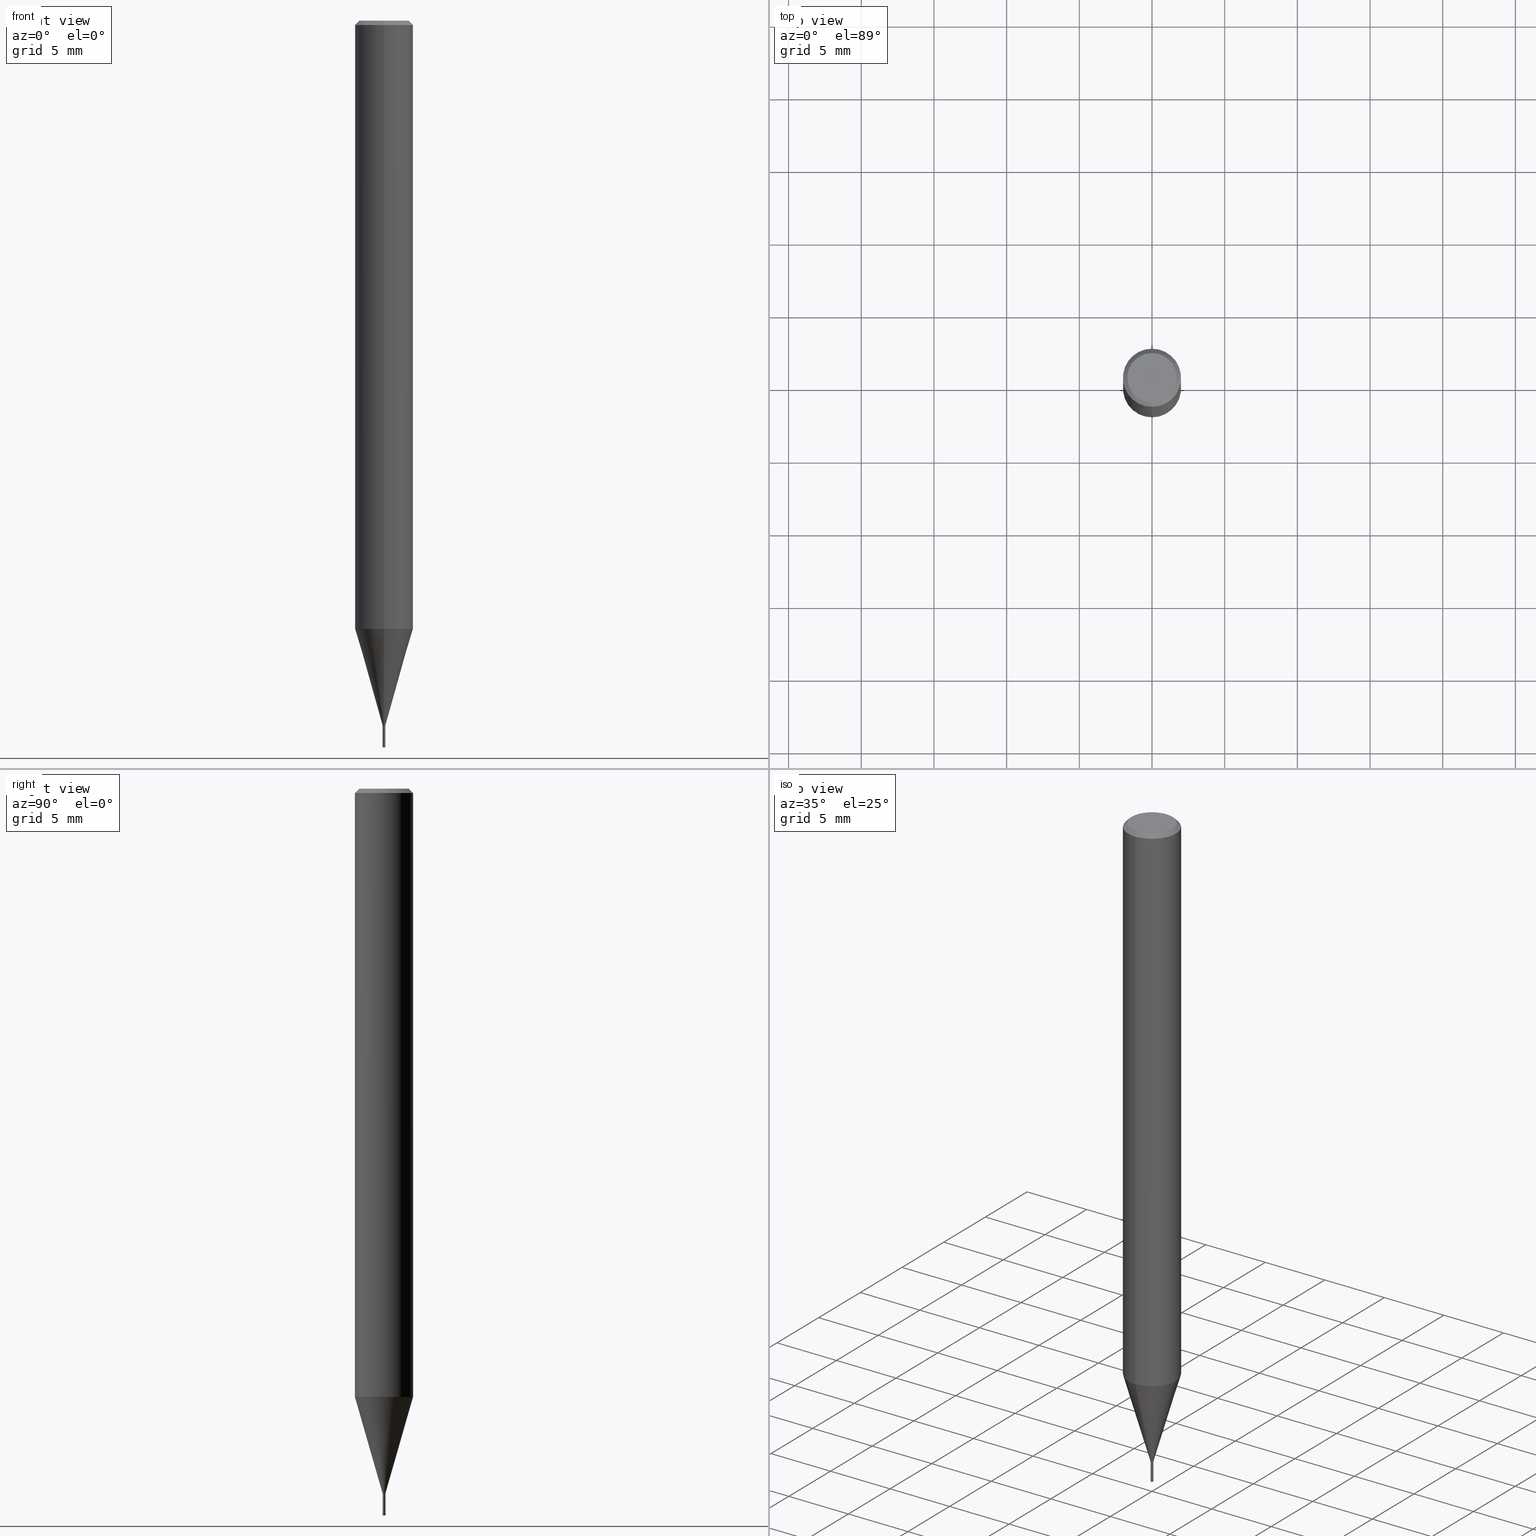
[diagram: canonical four-view strip — front | top / right | iso, engineering-drawing reading convention]
A machine part, canonical four-view strip (front | top / right | iso — engineering-drawing reading convention). The complete STEP part file that produces these views, byte-faithful:
ISO-10303-21;
HEADER;
FILE_DESCRIPTION(('no description'),'unknown implementation level');
FILE_NAME('HLRS4002-002-015-Huellk.stp','  ',('CIMSOURCE GmbH'),('CADClick - KiM GmbH - www.kimweb.de'),'unknown preprocess','ACIS','unknown authorization');
FILE_SCHEMA(('automotive_design'));
ENDSEC;
DATA;
#1=MECHANICAL_DESIGN_GEOMETRIC_PRESENTATION_REPRESENTATION(' ',(#14,#15,#16,#17,#18,#19,#20,#21,#22,#23,#24,#25,#26,#27,#28,#29,#30,#31,#32,#33,#34,#35,#36,#37,#38,#39,#40,#41,#42,#43,#44,#45,#46,#47,#48,#49,#50,#51,#52,#53,#54,#55,#56,#57,#58,#59,#60,#61,#62,#63,#64,#65,#66,#67,#68,#69,#70,#71,#72,#73,#74,#75,#76,#77,#78,#79,#80,#81,#82,#83,#84,#85,#86,#87,#88,#89,#90,#91,#92,#93,#94,#95,#96,#97,#98,#99,#100,#101,#102,#103,#104,#105,#106,#107,#108,#109,#110,#111,#112,#113,#114,#115,#116,#117,#118,#119,#120,#121),#10);
#2=PRODUCT_DEFINITION_CONTEXT('',#122,'design');
#3=APPLICATION_PROTOCOL_DEFINITION('INTERNATIONAL STANDARD','automotive_design',1994,#122);
#4=PRODUCT_CATEGORY_RELATIONSHIP('NONE','NONE',#123,#124);
#5=SHAPE_DEFINITION_REPRESENTATION(#125,#126);
#6=PRODUCT_DEFINITION_CONTEXT('',#127,'design');
#7=APPLICATION_PROTOCOL_DEFINITION('INTERNATIONAL STANDARD','automotive_design',1994,#127);
#8=PRODUCT_CATEGORY_RELATIONSHIP('NONE','NONE',#128,#129);
#9=SHAPE_DEFINITION_REPRESENTATION(#130,#131);
#10= (GEOMETRIC_REPRESENTATION_CONTEXT(3)GLOBAL_UNCERTAINTY_ASSIGNED_CONTEXT((#134))GLOBAL_UNIT_ASSIGNED_CONTEXT((#136,#137,#138))REPRESENTATION_CONTEXT('NONE','WORKSPACE'));
#14=STYLED_ITEM('',(#140),#141);
#15=STYLED_ITEM('',(#142),#143);
#16=STYLED_ITEM('',(#144),#145);
#17=STYLED_ITEM('',(#146),#147);
#18=STYLED_ITEM('',(#148),#149);
#19=STYLED_ITEM('',(#150),#151);
#20=STYLED_ITEM('',(#152),#153);
#21=STYLED_ITEM('',(#154),#155);
#22=STYLED_ITEM('',(#156),#157);
#23=STYLED_ITEM('',(#158),#159);
#24=STYLED_ITEM('',(#160),#161);
#25=STYLED_ITEM('',(#162),#163);
#26=STYLED_ITEM('',(#164),#165);
#27=STYLED_ITEM('',(#166),#167);
#28=STYLED_ITEM('',(#168),#169);
#29=STYLED_ITEM('',(#170),#171);
#30=STYLED_ITEM('',(#172),#173);
#31=STYLED_ITEM('',(#174),#175);
#32=STYLED_ITEM('',(#176),#177);
#33=STYLED_ITEM('',(#178),#179);
#34=STYLED_ITEM('',(#180),#181);
#35=STYLED_ITEM('',(#182),#183);
#36=STYLED_ITEM('',(#184),#185);
#37=STYLED_ITEM('',(#186),#187);
#38=STYLED_ITEM('',(#188),#189);
#39=STYLED_ITEM('',(#190),#191);
#40=STYLED_ITEM('',(#192),#193);
#41=STYLED_ITEM('',(#194),#195);
#42=STYLED_ITEM('',(#196),#197);
#43=STYLED_ITEM('',(#198),#199);
#44=STYLED_ITEM('',(#200),#201);
#45=STYLED_ITEM('',(#202),#203);
#46=STYLED_ITEM('',(#204),#205);
#47=STYLED_ITEM('',(#206),#207);
#48=STYLED_ITEM('',(#208),#209);
#49=STYLED_ITEM('',(#210),#211);
#50=STYLED_ITEM('',(#212),#213);
#51=STYLED_ITEM('',(#214),#215);
#52=STYLED_ITEM('',(#216),#217);
#53=STYLED_ITEM('',(#218),#219);
#54=STYLED_ITEM('',(#220),#221);
#55=STYLED_ITEM('',(#222),#223);
#56=STYLED_ITEM('',(#224),#225);
#57=STYLED_ITEM('',(#226),#227);
#58=STYLED_ITEM('',(#228),#229);
#59=STYLED_ITEM('',(#230),#231);
#60=STYLED_ITEM('',(#232),#233);
#61=STYLED_ITEM('',(#234),#235);
#62=STYLED_ITEM('',(#236),#237);
#63=STYLED_ITEM('',(#238),#239);
#64=STYLED_ITEM('',(#240),#241);
#65=STYLED_ITEM('',(#242),#243);
#66=STYLED_ITEM('',(#244),#245);
#67=STYLED_ITEM('',(#246),#247);
#68=STYLED_ITEM('',(#248),#249);
#69=STYLED_ITEM('',(#250),#251);
#70=STYLED_ITEM('',(#252),#253);
#71=STYLED_ITEM('',(#254),#255);
#72=STYLED_ITEM('',(#256),#257);
#73=STYLED_ITEM('',(#258),#259);
#74=STYLED_ITEM('',(#260),#261);
#75=STYLED_ITEM('',(#262),#263);
#76=STYLED_ITEM('',(#264),#265);
#77=STYLED_ITEM('',(#266),#267);
#78=STYLED_ITEM('',(#268),#269);
#79=STYLED_ITEM('',(#270),#271);
#80=STYLED_ITEM('',(#272),#273);
#81=STYLED_ITEM('',(#274),#275);
#82=STYLED_ITEM('',(#276),#277);
#83=STYLED_ITEM('',(#278),#279);
#84=STYLED_ITEM('',(#280),#281);
#85=STYLED_ITEM('',(#282),#283);
#86=STYLED_ITEM('',(#284),#285);
#87=STYLED_ITEM('',(#286),#287);
#88=STYLED_ITEM('',(#288),#289);
#89=STYLED_ITEM('',(#290),#291);
#90=STYLED_ITEM('',(#292),#293);
#91=STYLED_ITEM('',(#294),#295);
#92=STYLED_ITEM('',(#296),#297);
#93=STYLED_ITEM('',(#298),#299);
#94=STYLED_ITEM('',(#300),#301);
#95=STYLED_ITEM('',(#302),#303);
#96=STYLED_ITEM('',(#304),#305);
#97=STYLED_ITEM('',(#306),#307);
#98=STYLED_ITEM('',(#308),#309);
#99=STYLED_ITEM('',(#310),#311);
#100=STYLED_ITEM('',(#312),#313);
#101=STYLED_ITEM('',(#314),#315);
#102=STYLED_ITEM('',(#316),#317);
#103=STYLED_ITEM('',(#318),#319);
#104=STYLED_ITEM('',(#320),#321);
#105=STYLED_ITEM('',(#322),#323);
#106=STYLED_ITEM('',(#324),#325);
#107=STYLED_ITEM('',(#326),#327);
#108=STYLED_ITEM('',(#328),#329);
#109=STYLED_ITEM('',(#330),#331);
#110=STYLED_ITEM('',(#332),#333);
#111=STYLED_ITEM('',(#334),#335);
#112=STYLED_ITEM('',(#336),#337);
#113=STYLED_ITEM('',(#338),#339);
#114=STYLED_ITEM('',(#340),#341);
#115=STYLED_ITEM('',(#342),#343);
#116=STYLED_ITEM('',(#344),#345);
#117=STYLED_ITEM('',(#346),#347);
#118=STYLED_ITEM('',(#348),#349);
#119=STYLED_ITEM('',(#350),#351);
#120=STYLED_ITEM('',(#352),#353);
#121=STYLED_ITEM('',(#354),#355);
#122=APPLICATION_CONTEXT(' ');
#123=PRODUCT_CATEGORY('part','NONE');
#124=PRODUCT_RELATED_PRODUCT_CATEGORY('detail',' ',(#356));
#125=PRODUCT_DEFINITION_SHAPE('NONE','NONE',#357);
#126=ADVANCED_BREP_SHAPE_REPRESENTATION('1',(#349,#358),#10);
#127=APPLICATION_CONTEXT(' ');
#128=PRODUCT_CATEGORY('part','NONE');
#129=PRODUCT_RELATED_PRODUCT_CATEGORY('detail',' ',(#359));
#130=PRODUCT_DEFINITION_SHAPE('NONE','NONE',#360);
#131=ADVANCED_BREP_SHAPE_REPRESENTATION('2',(#271,#361),#10);
#134=UNCERTAINTY_MEASURE_WITH_UNIT(LENGTH_MEASURE(1.0E-006),#136,'','');
#136= (CONVERSION_BASED_UNIT('MILLIMETRE',#364)LENGTH_UNIT()NAMED_UNIT(#367));
#137= (NAMED_UNIT(#369)PLANE_ANGLE_UNIT()SI_UNIT($,.RADIAN.));
#138= (NAMED_UNIT(#369)SOLID_ANGLE_UNIT()SI_UNIT($,.STERADIAN.));
#140=PRESENTATION_STYLE_ASSIGNMENT((#375));
#141=EDGE_CURVE('',#247,#289,#376,.T.);
#142=PRESENTATION_STYLE_ASSIGNMENT((#377));
#143=VERTEX_POINT('',#378);
#144=PRESENTATION_STYLE_ASSIGNMENT((#379));
#145=VERTEX_POINT('',#380);
#146=PRESENTATION_STYLE_ASSIGNMENT((#381));
#147=ADVANCED_FACE('',(#382),#383,.T.);
#148=PRESENTATION_STYLE_ASSIGNMENT((#384));
#149=EDGE_CURVE('',#253,#307,#385,.T.);
#150=PRESENTATION_STYLE_ASSIGNMENT((#386));
#151=EDGE_CURVE('',#241,#143,#387,.T.);
#152=PRESENTATION_STYLE_ASSIGNMENT((#388));
#153=VERTEX_POINT('',#389);
#154=PRESENTATION_STYLE_ASSIGNMENT((#390));
#155=VERTEX_POINT('',#391);
#156=PRESENTATION_STYLE_ASSIGNMENT((#392));
#157=EDGE_CURVE('',#145,#185,#393,.T.);
#158=PRESENTATION_STYLE_ASSIGNMENT((#394));
#159=EDGE_CURVE('',#275,#145,#395,.T.);
#160=PRESENTATION_STYLE_ASSIGNMENT((#396));
#161=VERTEX_POINT('',#397);
#162=PRESENTATION_STYLE_ASSIGNMENT((#398));
#163=VERTEX_POINT('',#399);
#164=PRESENTATION_STYLE_ASSIGNMENT((#400));
#165=EDGE_CURVE('',#247,#161,#401,.T.);
#166=PRESENTATION_STYLE_ASSIGNMENT((#402));
#167=EDGE_CURVE('',#265,#309,#403,.T.);
#168=PRESENTATION_STYLE_ASSIGNMENT((#404));
#169=VERTEX_POINT('',#405);
#170=PRESENTATION_STYLE_ASSIGNMENT((#406));
#171=ADVANCED_FACE('',(#407),#408,.T.);
#172=PRESENTATION_STYLE_ASSIGNMENT((#409));
#173=EDGE_CURVE('',#339,#177,#410,.T.);
#174=PRESENTATION_STYLE_ASSIGNMENT((#411));
#175=EDGE_CURVE('',#185,#221,#412,.T.);
#176=PRESENTATION_STYLE_ASSIGNMENT((#413));
#177=VERTEX_POINT('',#414);
#178=PRESENTATION_STYLE_ASSIGNMENT((#415));
#179=EDGE_CURVE('',#245,#163,#416,.T.);
#180=PRESENTATION_STYLE_ASSIGNMENT((#417));
#181=EDGE_CURVE('',#177,#347,#418,.T.);
#182=PRESENTATION_STYLE_ASSIGNMENT((#419));
#183=EDGE_CURVE('',#177,#339,#420,.T.);
#184=PRESENTATION_STYLE_ASSIGNMENT((#421));
#185=VERTEX_POINT('',#422);
#186=PRESENTATION_STYLE_ASSIGNMENT((#423));
#187=ADVANCED_FACE('',(#424),#425,.T.);
#188=PRESENTATION_STYLE_ASSIGNMENT((#426));
#189=EDGE_CURVE('',#169,#303,#427,.T.);
#190=PRESENTATION_STYLE_ASSIGNMENT((#428));
#191=EDGE_CURVE('',#161,#215,#429,.T.);
#192=PRESENTATION_STYLE_ASSIGNMENT((#430));
#193=EDGE_CURVE('',#241,#303,#431,.T.);
#194=PRESENTATION_STYLE_ASSIGNMENT((#432));
#195=EDGE_CURVE('',#153,#321,#433,.T.);
#196=PRESENTATION_STYLE_ASSIGNMENT((#434));
#197=EDGE_CURVE('',#265,#253,#435,.T.);
#198=PRESENTATION_STYLE_ASSIGNMENT((#436));
#199=EDGE_CURVE('',#317,#221,#437,.T.);
#200=PRESENTATION_STYLE_ASSIGNMENT((#438));
#201=ADVANCED_FACE('',(#439),#440,.T.);
#202=PRESENTATION_STYLE_ASSIGNMENT((#441));
#203=ADVANCED_FACE('',(#442),#443,.T.);
#204=PRESENTATION_STYLE_ASSIGNMENT((#444));
#205=ADVANCED_FACE('',(#445),#446,.T.);
#206=PRESENTATION_STYLE_ASSIGNMENT((#447));
#207=EDGE_CURVE('',#211,#265,#448,.T.);
#208=PRESENTATION_STYLE_ASSIGNMENT((#449));
#209=ADVANCED_FACE('',(#450,#451),#452,.T.);
#210=PRESENTATION_STYLE_ASSIGNMENT((#453));
#211=VERTEX_POINT('',#454);
#212=PRESENTATION_STYLE_ASSIGNMENT((#455));
#213=ADVANCED_FACE('',(#456),#457,.F.);
#214=PRESENTATION_STYLE_ASSIGNMENT((#458));
#215=VERTEX_POINT('',#459);
#216=PRESENTATION_STYLE_ASSIGNMENT((#460));
#217=EDGE_CURVE('',#221,#317,#461,.T.);
#218=PRESENTATION_STYLE_ASSIGNMENT((#462));
#219=ADVANCED_FACE('',(#463),#464,.F.);
#220=PRESENTATION_STYLE_ASSIGNMENT((#465));
#221=VERTEX_POINT('',#466);
#222=PRESENTATION_STYLE_ASSIGNMENT((#467));
#223=EDGE_CURVE('',#309,#305,#468,.T.);
#224=PRESENTATION_STYLE_ASSIGNMENT((#469));
#225=EDGE_CURVE('',#317,#355,#470,.T.);
#226=PRESENTATION_STYLE_ASSIGNMENT((#471));
#227=ADVANCED_FACE('',(#472),#473,.T.);
#228=PRESENTATION_STYLE_ASSIGNMENT((#474));
#229=EDGE_CURVE('',#143,#169,#475,.T.);
#230=PRESENTATION_STYLE_ASSIGNMENT((#476));
#231=EDGE_CURVE('',#145,#275,#477,.T.);
#232=PRESENTATION_STYLE_ASSIGNMENT((#478));
#233=EDGE_CURVE('',#155,#161,#479,.T.);
#234=PRESENTATION_STYLE_ASSIGNMENT((#480));
#235=ADVANCED_FACE('',(#481),#482,.T.);
#236=PRESENTATION_STYLE_ASSIGNMENT((#483));
#237=ADVANCED_FACE('',(#484),#485,.T.);
#238=PRESENTATION_STYLE_ASSIGNMENT((#486));
#239=EDGE_CURVE('',#215,#297,#487,.T.);
#240=PRESENTATION_STYLE_ASSIGNMENT((#488));
#241=VERTEX_POINT('',#489);
#242=PRESENTATION_STYLE_ASSIGNMENT((#490));
#243=EDGE_CURVE('',#253,#265,#491,.T.);
#244=PRESENTATION_STYLE_ASSIGNMENT((#492));
#245=VERTEX_POINT('',#493);
#246=PRESENTATION_STYLE_ASSIGNMENT((#494));
#247=VERTEX_POINT('',#495);
#248=PRESENTATION_STYLE_ASSIGNMENT((#496));
#249=ADVANCED_FACE('',(#497),#498,.F.);
#250=PRESENTATION_STYLE_ASSIGNMENT((#499));
#251=EDGE_CURVE('',#305,#309,#500,.T.);
#252=PRESENTATION_STYLE_ASSIGNMENT((#501));
#253=VERTEX_POINT('',#502);
#254=PRESENTATION_STYLE_ASSIGNMENT((#503));
#255=ADVANCED_FACE('',(#504),#505,.T.);
#256=PRESENTATION_STYLE_ASSIGNMENT((#506));
#257=ADVANCED_FACE('',(#507),#508,.T.);
#258=PRESENTATION_STYLE_ASSIGNMENT((#509));
#259=ADVANCED_FACE('',(#510),#511,.T.);
#260=PRESENTATION_STYLE_ASSIGNMENT((#512));
#261=EDGE_CURVE('',#297,#247,#513,.T.);
#262=PRESENTATION_STYLE_ASSIGNMENT((#514));
#263=EDGE_CURVE('',#163,#245,#515,.T.);
#264=PRESENTATION_STYLE_ASSIGNMENT((#516));
#265=VERTEX_POINT('',#517);
#266=PRESENTATION_STYLE_ASSIGNMENT((#518));
#267=EDGE_CURVE('',#161,#247,#519,.T.);
#268=PRESENTATION_STYLE_ASSIGNMENT((#520));
#269=EDGE_CURVE('',#307,#211,#521,.T.);
#270=PRESENTATION_STYLE_ASSIGNMENT((#522));
#271=MANIFOLD_SOLID_BREP('2',#523);
#272=PRESENTATION_STYLE_ASSIGNMENT((#524));
#273=EDGE_CURVE('',#245,#143,#525,.T.);
#274=PRESENTATION_STYLE_ASSIGNMENT((#526));
#275=VERTEX_POINT('',#527);
#276=PRESENTATION_STYLE_ASSIGNMENT((#528));
#277=EDGE_CURVE('',#303,#241,#529,.T.);
#278=PRESENTATION_STYLE_ASSIGNMENT((#530));
#279=EDGE_CURVE('',#297,#215,#531,.T.);
#280=PRESENTATION_STYLE_ASSIGNMENT((#532));
#281=ADVANCED_FACE('',(#533),#534,.T.);
#282=PRESENTATION_STYLE_ASSIGNMENT((#535));
#283=EDGE_CURVE('',#155,#289,#536,.T.);
#284=PRESENTATION_STYLE_ASSIGNMENT((#537));
#285=ADVANCED_FACE('',(#538),#539,.T.);
#286=PRESENTATION_STYLE_ASSIGNMENT((#540));
#287=EDGE_CURVE('',#355,#185,#541,.T.);
#288=PRESENTATION_STYLE_ASSIGNMENT((#542));
#289=VERTEX_POINT('',#543);
#290=PRESENTATION_STYLE_ASSIGNMENT((#544));
#291=ADVANCED_FACE('',(#545),#546,.T.);
#292=PRESENTATION_STYLE_ASSIGNMENT((#547));
#293=VERTEX_POINT('',#548);
#294=PRESENTATION_STYLE_ASSIGNMENT((#549));
#295=EDGE_CURVE('',#169,#143,#550,.T.);
#296=PRESENTATION_STYLE_ASSIGNMENT((#551));
#297=VERTEX_POINT('',#552);
#298=PRESENTATION_STYLE_ASSIGNMENT((#553));
#299=EDGE_CURVE('',#169,#163,#554,.T.);
#300=PRESENTATION_STYLE_ASSIGNMENT((#555));
#301=EDGE_CURVE('',#355,#275,#556,.T.);
#302=PRESENTATION_STYLE_ASSIGNMENT((#557));
#303=VERTEX_POINT('',#558);
#304=PRESENTATION_STYLE_ASSIGNMENT((#559));
#305=VERTEX_POINT('',#560);
#306=PRESENTATION_STYLE_ASSIGNMENT((#561));
#307=VERTEX_POINT('',#562);
#308=PRESENTATION_STYLE_ASSIGNMENT((#563));
#309=VERTEX_POINT('',#564);
#310=PRESENTATION_STYLE_ASSIGNMENT((#565));
#311=EDGE_CURVE('',#185,#355,#566,.T.);
#312=PRESENTATION_STYLE_ASSIGNMENT((#567));
#313=ADVANCED_FACE('',(#568,#569),#570,.T.);
#314=PRESENTATION_STYLE_ASSIGNMENT((#571));
#315=EDGE_CURVE('',#321,#153,#572,.T.);
#316=PRESENTATION_STYLE_ASSIGNMENT((#573));
#317=VERTEX_POINT('',#574);
#318=PRESENTATION_STYLE_ASSIGNMENT((#575));
#319=EDGE_CURVE('',#347,#321,#576,.T.);
#320=PRESENTATION_STYLE_ASSIGNMENT((#577));
#321=VERTEX_POINT('',#578);
#322=PRESENTATION_STYLE_ASSIGNMENT((#579));
#323=EDGE_CURVE('',#293,#347,#580,.T.);
#324=PRESENTATION_STYLE_ASSIGNMENT((#581));
#325=EDGE_CURVE('',#289,#155,#582,.T.);
#326=PRESENTATION_STYLE_ASSIGNMENT((#583));
#327=EDGE_CURVE('',#293,#339,#584,.T.);
#328=PRESENTATION_STYLE_ASSIGNMENT((#585));
#329=ADVANCED_FACE('',(#586,#587),#588,.T.);
#330=PRESENTATION_STYLE_ASSIGNMENT((#589));
#331=ADVANCED_FACE('',(#590),#591,.T.);
#332=PRESENTATION_STYLE_ASSIGNMENT((#592));
#333=EDGE_CURVE('',#153,#293,#593,.T.);
#334=PRESENTATION_STYLE_ASSIGNMENT((#594));
#335=EDGE_CURVE('',#211,#307,#595,.T.);
#336=PRESENTATION_STYLE_ASSIGNMENT((#596));
#337=EDGE_CURVE('',#305,#253,#597,.T.);
#338=PRESENTATION_STYLE_ASSIGNMENT((#598));
#339=VERTEX_POINT('',#599);
#340=PRESENTATION_STYLE_ASSIGNMENT((#600));
#341=EDGE_CURVE('',#347,#293,#601,.T.);
#342=PRESENTATION_STYLE_ASSIGNMENT((#602));
#343=ADVANCED_FACE('',(#603,#604),#605,.T.);
#344=PRESENTATION_STYLE_ASSIGNMENT((#606));
#345=ADVANCED_FACE('',(#607),#608,.T.);
#346=PRESENTATION_STYLE_ASSIGNMENT((#609));
#347=VERTEX_POINT('',#610);
#348=PRESENTATION_STYLE_ASSIGNMENT((#611));
#349=MANIFOLD_SOLID_BREP('1',#612);
#350=PRESENTATION_STYLE_ASSIGNMENT((#613));
#351=ADVANCED_FACE('',(#614),#615,.F.);
#352=PRESENTATION_STYLE_ASSIGNMENT((#616));
#353=ADVANCED_FACE('',(#617),#618,.T.);
#354=PRESENTATION_STYLE_ASSIGNMENT((#619));
#355=VERTEX_POINT('',#620);
#356=PRODUCT('1','1','PART-1-DESC',(#621));
#357=PRODUCT_DEFINITION('NONE','NONE',#622,#2);
#358=AXIS2_PLACEMENT_3D('',#623,#624,#625);
#359=PRODUCT('2','2','PART-2-DESC',(#626));
#360=PRODUCT_DEFINITION('NONE','NONE',#627,#6);
#361=AXIS2_PLACEMENT_3D('',#628,#629,#630);
#364=LENGTH_MEASURE_WITH_UNIT(LENGTH_MEASURE(1.0),#631);
#367=DIMENSIONAL_EXPONENTS(1.0,0.0,0.0,0.0,0.0,0.0,0.0);
#369=DIMENSIONAL_EXPONENTS(0.0,0.0,0.0,0.0,0.0,0.0,0.0);
#375=CURVE_STYLE('',#632,POSITIVE_LENGTH_MEASURE(1.0E-006),#633);
#376=LINE('',#634,#635);
#377=POINT_STYLE(' ',#636,POSITIVE_LENGTH_MEASURE(1.0E-006),#637);
#378=CARTESIAN_POINT('',(0.0,0.1,-49.97));
#379=POINT_STYLE(' ',#638,POSITIVE_LENGTH_MEASURE(1.0E-006),#639);
#380=CARTESIAN_POINT('',(0.0,0.09495,-49.87));
#381=SURFACE_STYLE_USAGE(.BOTH.,#640);
#382=FACE_OUTER_BOUND('',#641,.T.);
#383=CONICAL_SURFACE('',#642,1.0462,0.279262361421134);
#384=CURVE_STYLE('',#643,POSITIVE_LENGTH_MEASURE(1.0E-006),#644);
#385=LINE('',#645,#646);
#386=CURVE_STYLE('',#647,POSITIVE_LENGTH_MEASURE(1.0E-006),#648);
#387=CIRCLE('',#649,0.02);
#388=POINT_STYLE(' ',#650,POSITIVE_LENGTH_MEASURE(1.0E-006),#651);
#389=CARTESIAN_POINT('',(5.5107285922007E-018,-0.045,-49.99));
#390=POINT_STYLE(' ',#652,POSITIVE_LENGTH_MEASURE(1.0E-006),#653);
#391=CARTESIAN_POINT('',(2.44921270764475E-016,-2.0,-41.838));
#392=CURVE_STYLE('',#654,POSITIVE_LENGTH_MEASURE(1.0E-006),#655);
#393=LINE('',#656,#657);
#394=CURVE_STYLE('',#658,POSITIVE_LENGTH_MEASURE(1.0E-006),#659);
#395=CIRCLE('',#660,0.09495);
#396=POINT_STYLE(' ',#661,POSITIVE_LENGTH_MEASURE(1.0E-006),#662);
#397=CARTESIAN_POINT('',(2.44921270764475E-016,-2.0,-0.289999999999999));
#398=POINT_STYLE(' ',#663,POSITIVE_LENGTH_MEASURE(1.0E-006),#664);
#399=CARTESIAN_POINT('',(1.22338174746856E-017,-0.0999,-49.87));
#400=CURVE_STYLE('',#665,POSITIVE_LENGTH_MEASURE(1.0E-006),#666);
#401=CIRCLE('',#667,2.0);
#402=CURVE_STYLE('',#668,POSITIVE_LENGTH_MEASURE(1.0E-006),#669);
#403=LINE('',#670,#671);
#404=POINT_STYLE(' ',#672,POSITIVE_LENGTH_MEASURE(1.0E-006),#673);
#405=CARTESIAN_POINT('',(1.22460635382238E-017,-0.1,-49.97));
#406=SURFACE_STYLE_USAGE(.BOTH.,#674);
#407=FACE_OUTER_BOUND('',#675,.T.);
#408=CONICAL_SURFACE('',#676,0.069975,1.37320827416588);
#409=CURVE_STYLE('',#677,POSITIVE_LENGTH_MEASURE(1.0E-006),#678);
#410=CIRCLE('',#679,0.0949);
#411=CURVE_STYLE('',#680,POSITIVE_LENGTH_MEASURE(1.0E-006),#681);
#412=LINE('',#682,#683);
#413=POINT_STYLE(' ',#684,POSITIVE_LENGTH_MEASURE(1.0E-006),#685);
#414=CARTESIAN_POINT('',(0.0,0.0949,-49.87));
#415=CURVE_STYLE('',#686,POSITIVE_LENGTH_MEASURE(1.0E-006),#687);
#416=CIRCLE('',#688,0.0999);
#417=CURVE_STYLE('',#689,POSITIVE_LENGTH_MEASURE(1.0E-006),#690);
#418=LINE('',#691,#692);
#419=CURVE_STYLE('',#693,POSITIVE_LENGTH_MEASURE(1.0E-006),#694);
#420=CIRCLE('',#695,0.0949);
#421=POINT_STYLE(' ',#696,POSITIVE_LENGTH_MEASURE(1.0E-006),#697);
#422=CARTESIAN_POINT('',(0.0,0.045,-49.88));
#423=SURFACE_STYLE_USAGE(.BOTH.,#698);
#424=FACE_OUTER_BOUND('',#699,.T.);
#425=CYLINDRICAL_SURFACE('',#700,0.045);
#426=CURVE_STYLE('',#701,POSITIVE_LENGTH_MEASURE(1.0E-006),#702);
#427=CIRCLE('',#703,0.02);
#428=CURVE_STYLE('',#704,POSITIVE_LENGTH_MEASURE(1.0E-006),#705);
#429=LINE('',#706,#707);
#430=CURVE_STYLE('',#708,POSITIVE_LENGTH_MEASURE(1.0E-006),#709);
#431=CIRCLE('',#710,0.08);
#432=CURVE_STYLE('',#711,POSITIVE_LENGTH_MEASURE(1.0E-006),#712);
#433=CIRCLE('',#713,0.045);
#434=CURVE_STYLE('',#714,POSITIVE_LENGTH_MEASURE(1.0E-006),#715);
#435=CIRCLE('',#716,0.09245);
#436=CURVE_STYLE('',#717,POSITIVE_LENGTH_MEASURE(1.0E-006),#718);
#437=CIRCLE('',#719,0.045);
#438=SURFACE_STYLE_USAGE(.BOTH.,#720);
#439=FACE_OUTER_BOUND('',#721,.T.);
#440=CONICAL_SURFACE('',#722,1.0462,0.279262361421134);
#441=SURFACE_STYLE_USAGE(.BOTH.,#723);
#442=FACE_OUTER_BOUND('',#724,.T.);
#443=PLANE('',#725);
#444=SURFACE_STYLE_USAGE(.BOTH.,#726);
#445=FACE_OUTER_BOUND('',#727,.T.);
#446=CONICAL_SURFACE('',#728,0.069975,1.37320827416588);
#447=CURVE_STYLE('',#729,POSITIVE_LENGTH_MEASURE(1.0E-006),#730);
#448=LINE('',#731,#732);
#449=SURFACE_STYLE_USAGE(.BOTH.,#733);
#450=FACE_OUTER_BOUND('',#734,.T.);
#451=FACE_BOUND('',#735,.T.);
#452=PLANE('',#736);
#453=POINT_STYLE(' ',#737,POSITIVE_LENGTH_MEASURE(1.0E-006),#738);
#454=CARTESIAN_POINT('',(1.13214857410879E-017,-0.09245,-49.87));
#455=SURFACE_STYLE_USAGE(.BOTH.,#739);
#456=FACE_OUTER_BOUND('',#740,.T.);
#457=CONICAL_SURFACE('',#741,0.06995,1.37301541050937);
#458=POINT_STYLE(' ',#742,POSITIVE_LENGTH_MEASURE(1.0E-006),#743);
#459=CARTESIAN_POINT('',(2.08183080149804E-016,-1.7,0.00999999999999801));
#460=CURVE_STYLE('',#744,POSITIVE_LENGTH_MEASURE(1.0E-006),#745);
#461=CIRCLE('',#746,0.045);
#462=SURFACE_STYLE_USAGE(.BOTH.,#747);
#463=FACE_OUTER_BOUND('',#748,.T.);
#464=CYLINDRICAL_SURFACE('',#749,0.045);
#465=POINT_STYLE(' ',#750,POSITIVE_LENGTH_MEASURE(1.0E-006),#751);
#466=CARTESIAN_POINT('',(0.0,0.045,-49.96));
#467=CURVE_STYLE('',#752,POSITIVE_LENGTH_MEASURE(1.0E-006),#753);
#468=CIRCLE('',#754,1.99995);
#469=CURVE_STYLE('',#755,POSITIVE_LENGTH_MEASURE(1.0E-006),#756);
#470=LINE('',#757,#758);
#471=SURFACE_STYLE_USAGE(.BOTH.,#759);
#472=FACE_OUTER_BOUND('',#760,.T.);
#473=CYLINDRICAL_SURFACE('',#761,0.09245);
#474=CURVE_STYLE('',#762,POSITIVE_LENGTH_MEASURE(1.0E-006),#763);
#475=CIRCLE('',#764,0.1);
#476=CURVE_STYLE('',#765,POSITIVE_LENGTH_MEASURE(1.0E-006),#766);
#477=CIRCLE('',#767,0.09495);
#478=CURVE_STYLE('',#768,POSITIVE_LENGTH_MEASURE(1.0E-006),#769);
#479=LINE('',#770,#771);
#480=SURFACE_STYLE_USAGE(.BOTH.,#772);
#481=FACE_OUTER_BOUND('',#773,.T.);
#482=TOROIDAL_SURFACE('',#774,0.08,0.02);
#483=SURFACE_STYLE_USAGE(.BOTH.,#775);
#484=FACE_OUTER_BOUND('',#776,.T.);
#485=CYLINDRICAL_SURFACE('',#777,2.0);
#486=CURVE_STYLE('',#778,POSITIVE_LENGTH_MEASURE(1.0E-006),#779);
#487=CIRCLE('',#780,1.7);
#488=POINT_STYLE(' ',#781,POSITIVE_LENGTH_MEASURE(1.0E-006),#782);
#489=CARTESIAN_POINT('',(0.0,0.08,-49.99));
#490=CURVE_STYLE('',#783,POSITIVE_LENGTH_MEASURE(1.0E-006),#784);
#491=CIRCLE('',#785,0.09245);
#492=POINT_STYLE(' ',#786,POSITIVE_LENGTH_MEASURE(1.0E-006),#787);
#493=CARTESIAN_POINT('',(0.0,0.0999,-49.87));
#494=POINT_STYLE(' ',#788,POSITIVE_LENGTH_MEASURE(1.0E-006),#789);
#495=CARTESIAN_POINT('',(0.0,2.0,-0.289999999999999));
#496=SURFACE_STYLE_USAGE(.BOTH.,#790);
#497=FACE_OUTER_BOUND('',#791,.T.);
#498=CONICAL_SURFACE('',#792,0.06995,1.37301541050937);
#499=CURVE_STYLE('',#793,POSITIVE_LENGTH_MEASURE(1.0E-006),#794);
#500=CIRCLE('',#795,1.99995);
#501=POINT_STYLE(' ',#796,POSITIVE_LENGTH_MEASURE(1.0E-006),#797);
#502=CARTESIAN_POINT('',(0.0,0.09245,-48.49));
#503=SURFACE_STYLE_USAGE(.BOTH.,#798);
#504=FACE_OUTER_BOUND('',#799,.T.);
#505=TOROIDAL_SURFACE('',#800,0.08,0.02);
#506=SURFACE_STYLE_USAGE(.BOTH.,#801);
#507=FACE_OUTER_BOUND('',#802,.T.);
#508=CYLINDRICAL_SURFACE('',#803,0.09245);
#509=SURFACE_STYLE_USAGE(.BOTH.,#804);
#510=FACE_OUTER_BOUND('',#805,.T.);
#511=CYLINDRICAL_SURFACE('',#806,0.045);
#512=CURVE_STYLE('',#807,POSITIVE_LENGTH_MEASURE(1.0E-006),#808);
#513=LINE('',#809,#810);
#514=CURVE_STYLE('',#811,POSITIVE_LENGTH_MEASURE(1.0E-006),#812);
#515=CIRCLE('',#813,0.0999);
#516=POINT_STYLE(' ',#814,POSITIVE_LENGTH_MEASURE(1.0E-006),#815);
#517=CARTESIAN_POINT('',(1.13214857410879E-017,-0.09245,-48.49));
#518=CURVE_STYLE('',#816,POSITIVE_LENGTH_MEASURE(1.0E-006),#817);
#519=CIRCLE('',#818,2.0);
#520=CURVE_STYLE('',#819,POSITIVE_LENGTH_MEASURE(1.0E-006),#820);
#521=CIRCLE('',#821,0.09245);
#522=SURFACE_STYLE_USAGE(.BOTH.,#822);
#523=CLOSED_SHELL('',(#351,#235,#345,#213,#249,#209,#291,#255,#313,#219));
#524=CURVE_STYLE('',#823,POSITIVE_LENGTH_MEASURE(1.0E-006),#824);
#525=LINE('',#825,#826);
#526=POINT_STYLE(' ',#827,POSITIVE_LENGTH_MEASURE(1.0E-006),#828);
#527=CARTESIAN_POINT('',(1.16276373295435E-017,-0.09495,-49.87));
#528=CURVE_STYLE('',#829,POSITIVE_LENGTH_MEASURE(1.0E-006),#830);
#529=CIRCLE('',#831,0.08);
#530=CURVE_STYLE('',#832,POSITIVE_LENGTH_MEASURE(1.0E-006),#833);
#531=CIRCLE('',#834,1.7);
#532=SURFACE_STYLE_USAGE(.BOTH.,#835);
#533=FACE_OUTER_BOUND('',#836,.T.);
#534=CONICAL_SURFACE('',#837,1.85,0.785398163397453);
#535=CURVE_STYLE('',#838,POSITIVE_LENGTH_MEASURE(1.0E-006),#839);
#536=CIRCLE('',#840,2.0);
#537=SURFACE_STYLE_USAGE(.BOTH.,#841);
#538=FACE_OUTER_BOUND('',#842,.T.);
#539=CYLINDRICAL_SURFACE('',#843,2.0);
#540=CURVE_STYLE('',#844,POSITIVE_LENGTH_MEASURE(1.0E-006),#845);
#541=CIRCLE('',#846,0.045);
#542=POINT_STYLE(' ',#847,POSITIVE_LENGTH_MEASURE(1.0E-006),#848);
#543=CARTESIAN_POINT('',(0.0,2.0,-41.838));
#544=SURFACE_STYLE_USAGE(.BOTH.,#849);
#545=FACE_OUTER_BOUND('',#850,.T.);
#546=CONICAL_SURFACE('',#851,0.09995,0.000999999666666895);
#547=POINT_STYLE(' ',#852,POSITIVE_LENGTH_MEASURE(1.0E-006),#853);
#548=CARTESIAN_POINT('',(5.5107285922007E-018,-0.045,-49.88));
#549=CURVE_STYLE('',#854,POSITIVE_LENGTH_MEASURE(1.0E-006),#855);
#550=CIRCLE('',#856,0.1);
#551=POINT_STYLE(' ',#857,POSITIVE_LENGTH_MEASURE(1.0E-006),#858);
#552=CARTESIAN_POINT('',(0.0,1.7,0.00999999999999801));
#553=CURVE_STYLE('',#859,POSITIVE_LENGTH_MEASURE(1.0E-006),#860);
#554=LINE('',#861,#862);
#555=CURVE_STYLE('',#863,POSITIVE_LENGTH_MEASURE(1.0E-006),#864);
#556=LINE('',#865,#866);
#557=POINT_STYLE(' ',#867,POSITIVE_LENGTH_MEASURE(1.0E-006),#868);
#558=CARTESIAN_POINT('',(9.79685083057902E-018,-0.08,-49.99));
#559=POINT_STYLE(' ',#869,POSITIVE_LENGTH_MEASURE(1.0E-006),#870);
#560=CARTESIAN_POINT('',(0.0,1.99995,-41.838));
#561=POINT_STYLE(' ',#871,POSITIVE_LENGTH_MEASURE(1.0E-006),#872);
#562=CARTESIAN_POINT('',(0.0,0.09245,-49.87));
#563=POINT_STYLE(' ',#873,POSITIVE_LENGTH_MEASURE(1.0E-006),#874);
#564=CARTESIAN_POINT('',(2.44915147732706E-016,-1.99995,-41.838));
#565=CURVE_STYLE('',#875,POSITIVE_LENGTH_MEASURE(1.0E-006),#876);
#566=CIRCLE('',#877,0.045);
#567=SURFACE_STYLE_USAGE(.BOTH.,#878);
#568=FACE_BOUND('',#879,.T.);
#569=FACE_OUTER_BOUND('',#880,.T.);
#570=PLANE('',#881);
#571=CURVE_STYLE('',#882,POSITIVE_LENGTH_MEASURE(1.0E-006),#883);
#572=CIRCLE('',#884,0.045);
#573=POINT_STYLE(' ',#885,POSITIVE_LENGTH_MEASURE(1.0E-006),#886);
#574=CARTESIAN_POINT('',(5.5107285922007E-018,-0.045,-49.96));
#575=CURVE_STYLE('',#887,POSITIVE_LENGTH_MEASURE(1.0E-006),#888);
#576=LINE('',#889,#890);
#577=POINT_STYLE(' ',#891,POSITIVE_LENGTH_MEASURE(1.0E-006),#892);
#578=CARTESIAN_POINT('',(0.0,0.045,-49.99));
#579=CURVE_STYLE('',#893,POSITIVE_LENGTH_MEASURE(1.0E-006),#894);
#580=CIRCLE('',#895,0.045);
#581=CURVE_STYLE('',#896,POSITIVE_LENGTH_MEASURE(1.0E-006),#897);
#582=CIRCLE('',#898,2.0);
#583=CURVE_STYLE('',#899,POSITIVE_LENGTH_MEASURE(1.0E-006),#900);
#584=LINE('',#901,#902);
#585=SURFACE_STYLE_USAGE(.BOTH.,#903);
#586=FACE_OUTER_BOUND('',#904,.T.);
#587=FACE_BOUND('',#905,.T.);
#588=PLANE('',#906);
#589=SURFACE_STYLE_USAGE(.BOTH.,#907);
#590=FACE_OUTER_BOUND('',#908,.T.);
#591=CONICAL_SURFACE('',#909,1.85,0.785398163397453);
#592=CURVE_STYLE('',#910,POSITIVE_LENGTH_MEASURE(1.0E-006),#911);
#593=LINE('',#912,#913);
#594=CURVE_STYLE('',#914,POSITIVE_LENGTH_MEASURE(1.0E-006),#915);
#595=CIRCLE('',#916,0.09245);
#596=CURVE_STYLE('',#917,POSITIVE_LENGTH_MEASURE(1.0E-006),#918);
#597=LINE('',#919,#920);
#598=POINT_STYLE(' ',#921,POSITIVE_LENGTH_MEASURE(1.0E-006),#922);
#599=CARTESIAN_POINT('',(1.16215142977744E-017,-0.0949,-49.87));
#600=CURVE_STYLE('',#923,POSITIVE_LENGTH_MEASURE(1.0E-006),#924);
#601=CIRCLE('',#925,0.045);
#602=SURFACE_STYLE_USAGE(.BOTH.,#926);
#603=FACE_OUTER_BOUND('',#927,.T.);
#604=FACE_BOUND('',#928,.T.);
#605=PLANE('',#929);
#606=SURFACE_STYLE_USAGE(.BOTH.,#930);
#607=FACE_OUTER_BOUND('',#931,.T.);
#608=CONICAL_SURFACE('',#932,0.09995,0.000999999666666895);
#609=POINT_STYLE(' ',#933,POSITIVE_LENGTH_MEASURE(1.0E-006),#934);
#610=CARTESIAN_POINT('',(0.0,0.045,-49.88));
#611=SURFACE_STYLE_USAGE(.BOTH.,#935);
#612=CLOSED_SHELL('',(#187,#205,#257,#201,#237,#281,#343,#203,#331,#285,#147,#227,#329,#171,#259,#353));
#613=SURFACE_STYLE_USAGE(.BOTH.,#936);
#614=FACE_OUTER_BOUND('',#937,.T.);
#615=CYLINDRICAL_SURFACE('',#938,0.045);
#616=SURFACE_STYLE_USAGE(.BOTH.,#939);
#617=FACE_OUTER_BOUND('',#940,.T.);
#618=PLANE('',#941);
#619=POINT_STYLE(' ',#942,POSITIVE_LENGTH_MEASURE(1.0E-006),#943);
#620=CARTESIAN_POINT('',(5.5107285922007E-018,-0.045,-49.88));
#621=PRODUCT_CONTEXT('',#122,'mechanical');
#622=PRODUCT_DEFINITION_FORMATION_WITH_SPECIFIED_SOURCE(' ','NONE',#356,.NOT_KNOWN.);
#623=CARTESIAN_POINT('',(0.0,0.0,0.0));
#624=DIRECTION('',(0.0,0.0,1.0));
#625=DIRECTION('',(1.0,0.0,0.0));
#626=PRODUCT_CONTEXT('',#127,'mechanical');
#627=PRODUCT_DEFINITION_FORMATION_WITH_SPECIFIED_SOURCE(' ','NONE',#359,.NOT_KNOWN.);
#628=CARTESIAN_POINT('',(0.0,0.0,0.0));
#629=DIRECTION('',(0.0,0.0,1.0));
#630=DIRECTION('',(1.0,0.0,0.0));
#631= (NAMED_UNIT(#367)LENGTH_UNIT()SI_UNIT(.MILLI.,.METRE.));
#632=DRAUGHTING_PRE_DEFINED_CURVE_FONT('continuous');
#633=COLOUR_RGB('',0.498039215803146,0.498039215803146,0.498039215803146);
#634=CARTESIAN_POINT('',(-2.44921270764475E-016,2.0,-21.064));
#635=VECTOR('',#945,1.0);
#636=PRE_DEFINED_MARKER('');
#637=COLOUR_RGB('',0.800000011920929,0.800000011920929,0.800000011920929);
#638=PRE_DEFINED_MARKER('');
#639=COLOUR_RGB('',0.498039215803146,0.498039215803146,0.498039215803146);
#640=SURFACE_SIDE_STYLE('',(#946));
#641=EDGE_LOOP('',(#947,#948,#949,#950));
#642=AXIS2_PLACEMENT_3D('',#951,#952,#953);
#643=DRAUGHTING_PRE_DEFINED_CURVE_FONT('continuous');
#644=COLOUR_RGB('',0.498039215803146,0.498039215803146,0.498039215803146);
#645=CARTESIAN_POINT('',(-1.13214857410879E-017,0.09245,-49.18));
#646=VECTOR('',#954,1.0);
#647=DRAUGHTING_PRE_DEFINED_CURVE_FONT('continuous');
#648=COLOUR_RGB('',0.800000011920929,0.800000011920929,0.800000011920929);
#649=AXIS2_PLACEMENT_3D('',#955,#956,#957);
#650=PRE_DEFINED_MARKER('');
#651=COLOUR_RGB('',0.800000011920929,0.800000011920929,0.800000011920929);
#652=PRE_DEFINED_MARKER('');
#653=COLOUR_RGB('',0.498039215803146,0.498039215803146,0.498039215803146);
#654=DRAUGHTING_PRE_DEFINED_CURVE_FONT('continuous');
#655=COLOUR_RGB('',0.498039215803146,0.498039215803146,0.498039215803146);
#656=CARTESIAN_POINT('',(-8.56918296087208E-018,0.069975,-49.875));
#657=VECTOR('',#958,1.0);
#658=DRAUGHTING_PRE_DEFINED_CURVE_FONT('continuous');
#659=COLOUR_RGB('',0.498039215803146,0.498039215803146,0.498039215803146);
#660=AXIS2_PLACEMENT_3D('',#959,#960,#961);
#661=PRE_DEFINED_MARKER('');
#662=COLOUR_RGB('',0.498039215803146,0.498039215803146,0.498039215803146);
#663=PRE_DEFINED_MARKER('');
#664=COLOUR_RGB('',0.800000011920929,0.800000011920929,0.800000011920929);
#665=DRAUGHTING_PRE_DEFINED_CURVE_FONT('continuous');
#666=COLOUR_RGB('',0.498039215803146,0.498039215803146,0.498039215803146);
#667=AXIS2_PLACEMENT_3D('',#962,#963,#964);
#668=DRAUGHTING_PRE_DEFINED_CURVE_FONT('continuous');
#669=COLOUR_RGB('',0.498039215803146,0.498039215803146,0.498039215803146);
#670=CARTESIAN_POINT('',(1.28118316736897E-016,-1.0462,-45.164));
#671=VECTOR('',#965,1.0);
#672=PRE_DEFINED_MARKER('');
#673=COLOUR_RGB('',0.800000011920929,0.800000011920929,0.800000011920929);
#674=SURFACE_SIDE_STYLE('',(#966));
#675=EDGE_LOOP('',(#967,#968,#969,#970));
#676=AXIS2_PLACEMENT_3D('',#971,#972,#973);
#677=DRAUGHTING_PRE_DEFINED_CURVE_FONT('continuous');
#678=COLOUR_RGB('',0.800000011920929,0.800000011920929,0.800000011920929);
#679=AXIS2_PLACEMENT_3D('',#974,#975,#976);
#680=DRAUGHTING_PRE_DEFINED_CURVE_FONT('continuous');
#681=COLOUR_RGB('',0.498039215803146,0.498039215803146,0.498039215803146);
#682=CARTESIAN_POINT('',(-5.5107285922007E-018,0.045,-49.92));
#683=VECTOR('',#977,1.0);
#684=PRE_DEFINED_MARKER('');
#685=COLOUR_RGB('',0.800000011920929,0.800000011920929,0.800000011920929);
#686=DRAUGHTING_PRE_DEFINED_CURVE_FONT('continuous');
#687=COLOUR_RGB('',0.800000011920929,0.800000011920929,0.800000011920929);
#688=AXIS2_PLACEMENT_3D('',#978,#979,#980);
#689=DRAUGHTING_PRE_DEFINED_CURVE_FONT('continuous');
#690=COLOUR_RGB('',0.800000011920929,0.800000011920929,0.800000011920929);
#691=CARTESIAN_POINT('',(-8.56612144498752E-018,0.06995,-49.875));
#692=VECTOR('',#981,1.0);
#693=DRAUGHTING_PRE_DEFINED_CURVE_FONT('continuous');
#694=COLOUR_RGB('',0.800000011920929,0.800000011920929,0.800000011920929);
#695=AXIS2_PLACEMENT_3D('',#982,#983,#984);
#696=PRE_DEFINED_MARKER('');
#697=COLOUR_RGB('',0.498039215803146,0.498039215803146,0.498039215803146);
#698=SURFACE_SIDE_STYLE('',(#985));
#699=EDGE_LOOP('',(#986,#987,#988,#989));
#700=AXIS2_PLACEMENT_3D('',#990,#991,#992);
#701=DRAUGHTING_PRE_DEFINED_CURVE_FONT('continuous');
#702=COLOUR_RGB('',0.800000011920929,0.800000011920929,0.800000011920929);
#703=AXIS2_PLACEMENT_3D('',#993,#994,#995);
#704=DRAUGHTING_PRE_DEFINED_CURVE_FONT('continuous');
#705=COLOUR_RGB('',0.498039215803146,0.498039215803146,0.498039215803146);
#706=CARTESIAN_POINT('',(2.2655217545714E-016,-1.85,-0.140000000000001));
#707=VECTOR('',#996,1.0);
#708=DRAUGHTING_PRE_DEFINED_CURVE_FONT('continuous');
#709=COLOUR_RGB('',0.800000011920929,0.800000011920929,0.800000011920929);
#710=AXIS2_PLACEMENT_3D('',#997,#998,#999);
#711=DRAUGHTING_PRE_DEFINED_CURVE_FONT('continuous');
#712=COLOUR_RGB('',0.800000011920929,0.800000011920929,0.800000011920929);
#713=AXIS2_PLACEMENT_3D('',#1000,#1001,#1002);
#714=DRAUGHTING_PRE_DEFINED_CURVE_FONT('continuous');
#715=COLOUR_RGB('',0.498039215803146,0.498039215803146,0.498039215803146);
#716=AXIS2_PLACEMENT_3D('',#1003,#1004,#1005);
#717=DRAUGHTING_PRE_DEFINED_CURVE_FONT('continuous');
#718=COLOUR_RGB('',0.498039215803146,0.498039215803146,0.498039215803146);
#719=AXIS2_PLACEMENT_3D('',#1006,#1007,#1008);
#720=SURFACE_SIDE_STYLE('',(#1009));
#721=EDGE_LOOP('',(#1010,#1011,#1012,#1013));
#722=AXIS2_PLACEMENT_3D('',#1014,#1015,#1016);
#723=SURFACE_SIDE_STYLE('',(#1017));
#724=EDGE_LOOP('',(#1018,#1019));
#725=AXIS2_PLACEMENT_3D('',#1020,#1021,#1022);
#726=SURFACE_SIDE_STYLE('',(#1023));
#727=EDGE_LOOP('',(#1024,#1025,#1026,#1027));
#728=AXIS2_PLACEMENT_3D('',#1028,#1029,#1030);
#729=DRAUGHTING_PRE_DEFINED_CURVE_FONT('continuous');
#730=COLOUR_RGB('',0.498039215803146,0.498039215803146,0.498039215803146);
#731=CARTESIAN_POINT('',(1.13214857410879E-017,-0.09245,-49.18));
#732=VECTOR('',#1031,1.0);
#733=SURFACE_SIDE_STYLE('',(#1032));
#734=EDGE_LOOP('',(#1033,#1034));
#735=EDGE_LOOP('',(#1035,#1036));
#736=AXIS2_PLACEMENT_3D('',#1037,#1038,#1039);
#737=PRE_DEFINED_MARKER('');
#738=COLOUR_RGB('',0.498039215803146,0.498039215803146,0.498039215803146);
#739=SURFACE_SIDE_STYLE('',(#1040));
#740=EDGE_LOOP('',(#1041,#1042,#1043,#1044));
#741=AXIS2_PLACEMENT_3D('',#1045,#1046,#1047);
#742=PRE_DEFINED_MARKER('');
#743=COLOUR_RGB('',0.498039215803146,0.498039215803146,0.498039215803146);
#744=DRAUGHTING_PRE_DEFINED_CURVE_FONT('continuous');
#745=COLOUR_RGB('',0.498039215803146,0.498039215803146,0.498039215803146);
#746=AXIS2_PLACEMENT_3D('',#1048,#1049,#1050);
#747=SURFACE_SIDE_STYLE('',(#1051));
#748=EDGE_LOOP('',(#1052,#1053,#1054,#1055));
#749=AXIS2_PLACEMENT_3D('',#1056,#1057,#1058);
#750=PRE_DEFINED_MARKER('');
#751=COLOUR_RGB('',0.498039215803146,0.498039215803146,0.498039215803146);
#752=DRAUGHTING_PRE_DEFINED_CURVE_FONT('continuous');
#753=COLOUR_RGB('',0.498039215803146,0.498039215803146,0.498039215803146);
#754=AXIS2_PLACEMENT_3D('',#1059,#1060,#1061);
#755=DRAUGHTING_PRE_DEFINED_CURVE_FONT('continuous');
#756=COLOUR_RGB('',0.498039215803146,0.498039215803146,0.498039215803146);
#757=CARTESIAN_POINT('',(5.5107285922007E-018,-0.045,-49.92));
#758=VECTOR('',#1062,1.0);
#759=SURFACE_SIDE_STYLE('',(#1063));
#760=EDGE_LOOP('',(#1064,#1065,#1066,#1067));
#761=AXIS2_PLACEMENT_3D('',#1068,#1069,#1070);
#762=DRAUGHTING_PRE_DEFINED_CURVE_FONT('continuous');
#763=COLOUR_RGB('',0.800000011920929,0.800000011920929,0.800000011920929);
#764=AXIS2_PLACEMENT_3D('',#1071,#1072,#1073);
#765=DRAUGHTING_PRE_DEFINED_CURVE_FONT('continuous');
#766=COLOUR_RGB('',0.498039215803146,0.498039215803146,0.498039215803146);
#767=AXIS2_PLACEMENT_3D('',#1074,#1075,#1076);
#768=DRAUGHTING_PRE_DEFINED_CURVE_FONT('continuous');
#769=COLOUR_RGB('',0.498039215803146,0.498039215803146,0.498039215803146);
#770=CARTESIAN_POINT('',(2.44921270764475E-016,-2.0,-21.064));
#771=VECTOR('',#1077,1.0);
#772=SURFACE_SIDE_STYLE('',(#1078));
#773=EDGE_LOOP('',(#1079,#1080,#1081,#1082));
#774=AXIS2_PLACEMENT_3D('',#1083,#1084,#1085);
#775=SURFACE_SIDE_STYLE('',(#1086));
#776=EDGE_LOOP('',(#1087,#1088,#1089,#1090));
#777=AXIS2_PLACEMENT_3D('',#1091,#1092,#1093);
#778=DRAUGHTING_PRE_DEFINED_CURVE_FONT('continuous');
#779=COLOUR_RGB('',0.498039215803146,0.498039215803146,0.498039215803146);
#780=AXIS2_PLACEMENT_3D('',#1094,#1095,#1096);
#781=PRE_DEFINED_MARKER('');
#782=COLOUR_RGB('',0.800000011920929,0.800000011920929,0.800000011920929);
#783=DRAUGHTING_PRE_DEFINED_CURVE_FONT('continuous');
#784=COLOUR_RGB('',0.498039215803146,0.498039215803146,0.498039215803146);
#785=AXIS2_PLACEMENT_3D('',#1097,#1098,#1099);
#786=PRE_DEFINED_MARKER('');
#787=COLOUR_RGB('',0.800000011920929,0.800000011920929,0.800000011920929);
#788=PRE_DEFINED_MARKER('');
#789=COLOUR_RGB('',0.498039215803146,0.498039215803146,0.498039215803146);
#790=SURFACE_SIDE_STYLE('',(#1100));
#791=EDGE_LOOP('',(#1101,#1102,#1103,#1104));
#792=AXIS2_PLACEMENT_3D('',#1105,#1106,#1107);
#793=DRAUGHTING_PRE_DEFINED_CURVE_FONT('continuous');
#794=COLOUR_RGB('',0.498039215803146,0.498039215803146,0.498039215803146);
#795=AXIS2_PLACEMENT_3D('',#1108,#1109,#1110);
#796=PRE_DEFINED_MARKER('');
#797=COLOUR_RGB('',0.498039215803146,0.498039215803146,0.498039215803146);
#798=SURFACE_SIDE_STYLE('',(#1111));
#799=EDGE_LOOP('',(#1112,#1113,#1114,#1115));
#800=AXIS2_PLACEMENT_3D('',#1116,#1117,#1118);
#801=SURFACE_SIDE_STYLE('',(#1119));
#802=EDGE_LOOP('',(#1120,#1121,#1122,#1123));
#803=AXIS2_PLACEMENT_3D('',#1124,#1125,#1126);
#804=SURFACE_SIDE_STYLE('',(#1127));
#805=EDGE_LOOP('',(#1128,#1129,#1130,#1131));
#806=AXIS2_PLACEMENT_3D('',#1132,#1133,#1134);
#807=DRAUGHTING_PRE_DEFINED_CURVE_FONT('continuous');
#808=COLOUR_RGB('',0.498039215803146,0.498039215803146,0.498039215803146);
#809=CARTESIAN_POINT('',(-2.2655217545714E-016,1.85,-0.140000000000001));
#810=VECTOR('',#1135,1.0);
#811=DRAUGHTING_PRE_DEFINED_CURVE_FONT('continuous');
#812=COLOUR_RGB('',0.800000011920929,0.800000011920929,0.800000011920929);
#813=AXIS2_PLACEMENT_3D('',#1136,#1137,#1138);
#814=PRE_DEFINED_MARKER('');
#815=COLOUR_RGB('',0.498039215803146,0.498039215803146,0.498039215803146);
#816=DRAUGHTING_PRE_DEFINED_CURVE_FONT('continuous');
#817=COLOUR_RGB('',0.498039215803146,0.498039215803146,0.498039215803146);
#818=AXIS2_PLACEMENT_3D('',#1139,#1140,#1141);
#819=DRAUGHTING_PRE_DEFINED_CURVE_FONT('continuous');
#820=COLOUR_RGB('',0.498039215803146,0.498039215803146,0.498039215803146);
#821=AXIS2_PLACEMENT_3D('',#1142,#1143,#1144);
#822=SURFACE_SIDE_STYLE('',(#1145));
#823=DRAUGHTING_PRE_DEFINED_CURVE_FONT('continuous');
#824=COLOUR_RGB('',0.800000011920929,0.800000011920929,0.800000011920929);
#825=CARTESIAN_POINT('',(-1.22399405064547E-017,0.09995,-49.92));
#826=VECTOR('',#1146,1.0);
#827=PRE_DEFINED_MARKER('');
#828=COLOUR_RGB('',0.498039215803146,0.498039215803146,0.498039215803146);
#829=DRAUGHTING_PRE_DEFINED_CURVE_FONT('continuous');
#830=COLOUR_RGB('',0.800000011920929,0.800000011920929,0.800000011920929);
#831=AXIS2_PLACEMENT_3D('',#1147,#1148,#1149);
#832=DRAUGHTING_PRE_DEFINED_CURVE_FONT('continuous');
#833=COLOUR_RGB('',0.498039215803146,0.498039215803146,0.498039215803146);
#834=AXIS2_PLACEMENT_3D('',#1150,#1151,#1152);
#835=SURFACE_SIDE_STYLE('',(#1153));
#836=EDGE_LOOP('',(#1154,#1155,#1156,#1157));
#837=AXIS2_PLACEMENT_3D('',#1158,#1159,#1160);
#838=DRAUGHTING_PRE_DEFINED_CURVE_FONT('continuous');
#839=COLOUR_RGB('',0.498039215803146,0.498039215803146,0.498039215803146);
#840=AXIS2_PLACEMENT_3D('',#1161,#1162,#1163);
#841=SURFACE_SIDE_STYLE('',(#1164));
#842=EDGE_LOOP('',(#1165,#1166,#1167,#1168));
#843=AXIS2_PLACEMENT_3D('',#1169,#1170,#1171);
#844=DRAUGHTING_PRE_DEFINED_CURVE_FONT('continuous');
#845=COLOUR_RGB('',0.498039215803146,0.498039215803146,0.498039215803146);
#846=AXIS2_PLACEMENT_3D('',#1172,#1173,#1174);
#847=PRE_DEFINED_MARKER('');
#848=COLOUR_RGB('',0.498039215803146,0.498039215803146,0.498039215803146);
#849=SURFACE_SIDE_STYLE('',(#1175));
#850=EDGE_LOOP('',(#1176,#1177,#1178,#1179));
#851=AXIS2_PLACEMENT_3D('',#1180,#1181,#1182);
#852=PRE_DEFINED_MARKER('');
#853=COLOUR_RGB('',0.800000011920929,0.800000011920929,0.800000011920929);
#854=DRAUGHTING_PRE_DEFINED_CURVE_FONT('continuous');
#855=COLOUR_RGB('',0.800000011920929,0.800000011920929,0.800000011920929);
#856=AXIS2_PLACEMENT_3D('',#1183,#1184,#1185);
#857=PRE_DEFINED_MARKER('');
#858=COLOUR_RGB('',0.498039215803146,0.498039215803146,0.498039215803146);
#859=DRAUGHTING_PRE_DEFINED_CURVE_FONT('continuous');
#860=COLOUR_RGB('',0.800000011920929,0.800000011920929,0.800000011920929);
#861=CARTESIAN_POINT('',(1.22399405064547E-017,-0.09995,-49.92));
#862=VECTOR('',#1186,1.0);
#863=DRAUGHTING_PRE_DEFINED_CURVE_FONT('continuous');
#864=COLOUR_RGB('',0.498039215803146,0.498039215803146,0.498039215803146);
#865=CARTESIAN_POINT('',(8.56918296087209E-018,-0.069975,-49.875));
#866=VECTOR('',#1187,1.0);
#867=PRE_DEFINED_MARKER('');
#868=COLOUR_RGB('',0.800000011920929,0.800000011920929,0.800000011920929);
#869=PRE_DEFINED_MARKER('');
#870=COLOUR_RGB('',0.498039215803146,0.498039215803146,0.498039215803146);
#871=PRE_DEFINED_MARKER('');
#872=COLOUR_RGB('',0.498039215803146,0.498039215803146,0.498039215803146);
#873=PRE_DEFINED_MARKER('');
#874=COLOUR_RGB('',0.498039215803146,0.498039215803146,0.498039215803146);
#875=DRAUGHTING_PRE_DEFINED_CURVE_FONT('continuous');
#876=COLOUR_RGB('',0.498039215803146,0.498039215803146,0.498039215803146);
#877=AXIS2_PLACEMENT_3D('',#1188,#1189,#1190);
#878=SURFACE_SIDE_STYLE('',(#1191));
#879=EDGE_LOOP('',(#1192,#1193));
#880=EDGE_LOOP('',(#1194,#1195));
#881=AXIS2_PLACEMENT_3D('',#1196,#1197,#1198);
#882=DRAUGHTING_PRE_DEFINED_CURVE_FONT('continuous');
#883=COLOUR_RGB('',0.800000011920929,0.800000011920929,0.800000011920929);
#884=AXIS2_PLACEMENT_3D('',#1199,#1200,#1201);
#885=PRE_DEFINED_MARKER('');
#886=COLOUR_RGB('',0.498039215803146,0.498039215803146,0.498039215803146);
#887=DRAUGHTING_PRE_DEFINED_CURVE_FONT('continuous');
#888=COLOUR_RGB('',0.800000011920929,0.800000011920929,0.800000011920929);
#889=CARTESIAN_POINT('',(-5.5107285922007E-018,0.045,-49.935));
#890=VECTOR('',#1202,1.0);
#891=PRE_DEFINED_MARKER('');
#892=COLOUR_RGB('',0.800000011920929,0.800000011920929,0.800000011920929);
#893=DRAUGHTING_PRE_DEFINED_CURVE_FONT('continuous');
#894=COLOUR_RGB('',0.800000011920929,0.800000011920929,0.800000011920929);
#895=AXIS2_PLACEMENT_3D('',#1203,#1204,#1205);
#896=DRAUGHTING_PRE_DEFINED_CURVE_FONT('continuous');
#897=COLOUR_RGB('',0.498039215803146,0.498039215803146,0.498039215803146);
#898=AXIS2_PLACEMENT_3D('',#1206,#1207,#1208);
#899=DRAUGHTING_PRE_DEFINED_CURVE_FONT('continuous');
#900=COLOUR_RGB('',0.800000011920929,0.800000011920929,0.800000011920929);
#901=CARTESIAN_POINT('',(8.56612144498753E-018,-0.06995,-49.875));
#902=VECTOR('',#1209,1.0);
#903=SURFACE_SIDE_STYLE('',(#1210));
#904=EDGE_LOOP('',(#1211,#1212));
#905=EDGE_LOOP('',(#1213,#1214));
#906=AXIS2_PLACEMENT_3D('',#1215,#1216,#1217);
#907=SURFACE_SIDE_STYLE('',(#1218));
#908=EDGE_LOOP('',(#1219,#1220,#1221,#1222));
#909=AXIS2_PLACEMENT_3D('',#1223,#1224,#1225);
#910=DRAUGHTING_PRE_DEFINED_CURVE_FONT('continuous');
#911=COLOUR_RGB('',0.800000011920929,0.800000011920929,0.800000011920929);
#912=CARTESIAN_POINT('',(5.5107285922007E-018,-0.045,-49.935));
#913=VECTOR('',#1226,1.0);
#914=DRAUGHTING_PRE_DEFINED_CURVE_FONT('continuous');
#915=COLOUR_RGB('',0.498039215803146,0.498039215803146,0.498039215803146);
#916=AXIS2_PLACEMENT_3D('',#1227,#1228,#1229);
#917=DRAUGHTING_PRE_DEFINED_CURVE_FONT('continuous');
#918=COLOUR_RGB('',0.498039215803146,0.498039215803146,0.498039215803146);
#919=CARTESIAN_POINT('',(-1.28118316736897E-016,1.0462,-45.164));
#920=VECTOR('',#1230,1.0);
#921=PRE_DEFINED_MARKER('');
#922=COLOUR_RGB('',0.800000011920929,0.800000011920929,0.800000011920929);
#923=DRAUGHTING_PRE_DEFINED_CURVE_FONT('continuous');
#924=COLOUR_RGB('',0.800000011920929,0.800000011920929,0.800000011920929);
#925=AXIS2_PLACEMENT_3D('',#1231,#1232,#1233);
#926=SURFACE_SIDE_STYLE('',(#1234));
#927=EDGE_LOOP('',(#1235,#1236));
#928=EDGE_LOOP('',(#1237,#1238));
#929=AXIS2_PLACEMENT_3D('',#1239,#1240,#1241);
#930=SURFACE_SIDE_STYLE('',(#1242));
#931=EDGE_LOOP('',(#1243,#1244,#1245,#1246));
#932=AXIS2_PLACEMENT_3D('',#1247,#1248,#1249);
#933=PRE_DEFINED_MARKER('');
#934=COLOUR_RGB('',0.800000011920929,0.800000011920929,0.800000011920929);
#935=SURFACE_SIDE_STYLE('',(#1250));
#936=SURFACE_SIDE_STYLE('',(#1251));
#937=EDGE_LOOP('',(#1252,#1253,#1254,#1255));
#938=AXIS2_PLACEMENT_3D('',#1256,#1257,#1258);
#939=SURFACE_SIDE_STYLE('',(#1259));
#940=EDGE_LOOP('',(#1260,#1261));
#941=AXIS2_PLACEMENT_3D('',#1262,#1263,#1264);
#942=PRE_DEFINED_MARKER('');
#943=COLOUR_RGB('',0.498039215803146,0.498039215803146,0.498039215803146);
#945=DIRECTION('',(0.0,0.0,-1.0));
#946=SURFACE_STYLE_FILL_AREA(#1265);
#947=ORIENTED_EDGE('',*,*,#337,.T.);
#948=ORIENTED_EDGE('',*,*,#197,.F.);
#949=ORIENTED_EDGE('',*,*,#167,.T.);
#950=ORIENTED_EDGE('',*,*,#223,.T.);
#951=CARTESIAN_POINT('',(0.0,0.0,-45.164));
#952=DIRECTION('',(-0.0,-0.0,1.0));
#953=DIRECTION('',(0.0,1.0,0.0));
#954=DIRECTION('',(0.0,0.0,-1.0));
#955=CARTESIAN_POINT('',(-9.79685083057902E-018,0.08,-49.97));
#956=DIRECTION('',(1.0,1.22460635382238E-016,0.0));
#957=DIRECTION('',(-1.22460635382238E-016,1.0,0.0));
#958=DIRECTION('',(1.20077907359861E-016,-0.980542906584308,-0.19630488620306));
#959=CARTESIAN_POINT('',(0.0,0.0,-49.87));
#960=DIRECTION('',(0.0,0.0,-1.0));
#961=DIRECTION('',(0.0,1.0,0.0));
#962=CARTESIAN_POINT('',(0.0,0.0,-0.289999999999999));
#963=DIRECTION('',(0.0,0.0,-1.0));
#964=DIRECTION('',(0.0,1.0,0.0));
#965=DIRECTION('',(3.37558653544073E-017,-0.275646661876649,0.961259027419904));
#966=SURFACE_STYLE_FILL_AREA(#1266);
#967=ORIENTED_EDGE('',*,*,#157,.T.);
#968=ORIENTED_EDGE('',*,*,#287,.F.);
#969=ORIENTED_EDGE('',*,*,#301,.T.);
#970=ORIENTED_EDGE('',*,*,#159,.T.);
#971=CARTESIAN_POINT('',(0.0,0.0,-49.875));
#972=DIRECTION('',(-0.0,-0.0,1.0));
#973=DIRECTION('',(0.0,1.0,0.0));
#974=CARTESIAN_POINT('',(0.0,0.0,-49.87));
#975=DIRECTION('',(0.0,0.0,-1.0));
#976=DIRECTION('',(0.0,1.0,0.0));
#977=DIRECTION('',(0.0,0.0,-1.0));
#978=CARTESIAN_POINT('',(0.0,0.0,-49.87));
#979=DIRECTION('',(0.0,0.0,-1.0));
#980=DIRECTION('',(0.0,1.0,0.0));
#981=DIRECTION('',(1.2007326875743E-016,-0.980505028270052,-0.196493993641393));
#982=CARTESIAN_POINT('',(0.0,0.0,-49.87));
#983=DIRECTION('',(0.0,0.0,-1.0));
#984=DIRECTION('',(0.0,1.0,0.0));
#985=SURFACE_STYLE_FILL_AREA(#1267);
#986=ORIENTED_EDGE('',*,*,#175,.F.);
#987=ORIENTED_EDGE('',*,*,#311,.T.);
#988=ORIENTED_EDGE('',*,*,#225,.F.);
#989=ORIENTED_EDGE('',*,*,#217,.F.);
#990=CARTESIAN_POINT('',(0.0,0.0,-49.92));
#991=DIRECTION('',(-0.0,-0.0,1.0));
#992=DIRECTION('',(0.0,1.0,0.0));
#993=CARTESIAN_POINT('',(9.79685083057902E-018,-0.08,-49.97));
#994=DIRECTION('',(1.0,1.22460635382238E-016,0.0));
#995=DIRECTION('',(1.22460635382238E-016,-1.0,-0.0));
#996=DIRECTION('',(-8.6592745707194E-017,0.707106781186551,0.707106781186544));
#997=CARTESIAN_POINT('',(0.0,0.0,-49.99));
#998=DIRECTION('',(0.0,0.0,-1.0));
#999=DIRECTION('',(0.0,1.0,0.0));
#1000=CARTESIAN_POINT('',(0.0,0.0,-49.99));
#1001=DIRECTION('',(0.0,0.0,-1.0));
#1002=DIRECTION('',(0.0,1.0,0.0));
#1003=CARTESIAN_POINT('',(0.0,0.0,-48.49));
#1004=DIRECTION('',(0.0,0.0,-1.0));
#1005=DIRECTION('',(0.0,1.0,0.0));
#1006=CARTESIAN_POINT('',(0.0,0.0,-49.96));
#1007=DIRECTION('',(0.0,0.0,-1.0));
#1008=DIRECTION('',(0.0,1.0,0.0));
#1009=SURFACE_STYLE_FILL_AREA(#1268);
#1010=ORIENTED_EDGE('',*,*,#337,.F.);
#1011=ORIENTED_EDGE('',*,*,#251,.T.);
#1012=ORIENTED_EDGE('',*,*,#167,.F.);
#1013=ORIENTED_EDGE('',*,*,#243,.F.);
#1014=CARTESIAN_POINT('',(0.0,0.0,-45.164));
#1015=DIRECTION('',(-0.0,-0.0,1.0));
#1016=DIRECTION('',(0.0,1.0,0.0));
#1017=SURFACE_STYLE_FILL_AREA(#1269);
#1018=ORIENTED_EDGE('',*,*,#279,.F.);
#1019=ORIENTED_EDGE('',*,*,#239,.F.);
#1020=CARTESIAN_POINT('',(0.0,0.85,0.00999999999999801));
#1021=DIRECTION('',(-0.0,0.0,1.0));
#1022=DIRECTION('',(0.0,-1.0,0.0));
#1023=SURFACE_STYLE_FILL_AREA(#1270);
#1024=ORIENTED_EDGE('',*,*,#157,.F.);
#1025=ORIENTED_EDGE('',*,*,#231,.T.);
#1026=ORIENTED_EDGE('',*,*,#301,.F.);
#1027=ORIENTED_EDGE('',*,*,#311,.F.);
#1028=CARTESIAN_POINT('',(0.0,0.0,-49.875));
#1029=DIRECTION('',(-0.0,-0.0,1.0));
#1030=DIRECTION('',(0.0,1.0,0.0));
#1031=DIRECTION('',(-0.0,-0.0,1.0));
#1032=SURFACE_STYLE_FILL_AREA(#1271);
#1033=ORIENTED_EDGE('',*,*,#179,.F.);
#1034=ORIENTED_EDGE('',*,*,#263,.F.);
#1035=ORIENTED_EDGE('',*,*,#183,.T.);
#1036=ORIENTED_EDGE('',*,*,#173,.T.);
#1037=CARTESIAN_POINT('',(0.0,0.0974,-49.87));
#1038=DIRECTION('',(-0.0,0.0,1.0));
#1039=DIRECTION('',(0.0,-1.0,0.0));
#1040=SURFACE_STYLE_FILL_AREA(#1272);
#1041=ORIENTED_EDGE('',*,*,#181,.F.);
#1042=ORIENTED_EDGE('',*,*,#173,.F.);
#1043=ORIENTED_EDGE('',*,*,#327,.F.);
#1044=ORIENTED_EDGE('',*,*,#323,.T.);
#1045=CARTESIAN_POINT('',(0.0,0.0,-49.875));
#1046=DIRECTION('',(-0.0,-0.0,1.0));
#1047=DIRECTION('',(0.0,1.0,0.0));
#1048=CARTESIAN_POINT('',(0.0,0.0,-49.96));
#1049=DIRECTION('',(0.0,0.0,-1.0));
#1050=DIRECTION('',(0.0,1.0,0.0));
#1051=SURFACE_STYLE_FILL_AREA(#1273);
#1052=ORIENTED_EDGE('',*,*,#319,.T.);
#1053=ORIENTED_EDGE('',*,*,#315,.T.);
#1054=ORIENTED_EDGE('',*,*,#333,.T.);
#1055=ORIENTED_EDGE('',*,*,#341,.F.);
#1056=CARTESIAN_POINT('',(0.0,0.0,-49.935));
#1057=DIRECTION('',(-0.0,-0.0,1.0));
#1058=DIRECTION('',(0.0,1.0,0.0));
#1059=CARTESIAN_POINT('',(0.0,0.0,-41.838));
#1060=DIRECTION('',(0.0,0.0,-1.0));
#1061=DIRECTION('',(0.0,1.0,0.0));
#1062=DIRECTION('',(-0.0,-0.0,1.0));
#1063=SURFACE_STYLE_FILL_AREA(#1274);
#1064=ORIENTED_EDGE('',*,*,#149,.T.);
#1065=ORIENTED_EDGE('',*,*,#335,.F.);
#1066=ORIENTED_EDGE('',*,*,#207,.T.);
#1067=ORIENTED_EDGE('',*,*,#197,.T.);
#1068=CARTESIAN_POINT('',(0.0,0.0,-49.18));
#1069=DIRECTION('',(-0.0,-0.0,1.0));
#1070=DIRECTION('',(0.0,1.0,0.0));
#1071=CARTESIAN_POINT('',(0.0,0.0,-49.97));
#1072=DIRECTION('',(0.0,0.0,-1.0));
#1073=DIRECTION('',(0.0,1.0,0.0));
#1074=CARTESIAN_POINT('',(0.0,0.0,-49.87));
#1075=DIRECTION('',(0.0,0.0,-1.0));
#1076=DIRECTION('',(0.0,1.0,0.0));
#1077=DIRECTION('',(-0.0,-0.0,1.0));
#1078=SURFACE_STYLE_FILL_AREA(#1275);
#1079=ORIENTED_EDGE('',*,*,#189,.F.);
#1080=ORIENTED_EDGE('',*,*,#295,.T.);
#1081=ORIENTED_EDGE('',*,*,#151,.F.);
#1082=ORIENTED_EDGE('',*,*,#277,.F.);
#1083=CARTESIAN_POINT('',(0.0,0.0,-49.97));
#1084=DIRECTION('',(0.0,0.0,-1.0));
#1085=DIRECTION('',(0.0,-1.0,0.0));
#1086=SURFACE_STYLE_FILL_AREA(#1276);
#1087=ORIENTED_EDGE('',*,*,#141,.F.);
#1088=ORIENTED_EDGE('',*,*,#165,.T.);
#1089=ORIENTED_EDGE('',*,*,#233,.F.);
#1090=ORIENTED_EDGE('',*,*,#325,.F.);
#1091=CARTESIAN_POINT('',(0.0,0.0,-21.064));
#1092=DIRECTION('',(-0.0,-0.0,1.0));
#1093=DIRECTION('',(0.0,1.0,0.0));
#1094=CARTESIAN_POINT('',(0.0,0.0,0.00999999999999801));
#1095=DIRECTION('',(0.0,0.0,-1.0));
#1096=DIRECTION('',(0.0,1.0,0.0));
#1097=CARTESIAN_POINT('',(0.0,0.0,-48.49));
#1098=DIRECTION('',(0.0,0.0,-1.0));
#1099=DIRECTION('',(0.0,1.0,0.0));
#1100=SURFACE_STYLE_FILL_AREA(#1277);
#1101=ORIENTED_EDGE('',*,*,#181,.T.);
#1102=ORIENTED_EDGE('',*,*,#341,.T.);
#1103=ORIENTED_EDGE('',*,*,#327,.T.);
#1104=ORIENTED_EDGE('',*,*,#183,.F.);
#1105=CARTESIAN_POINT('',(0.0,0.0,-49.875));
#1106=DIRECTION('',(-0.0,-0.0,1.0));
#1107=DIRECTION('',(0.0,1.0,0.0));
#1108=CARTESIAN_POINT('',(0.0,0.0,-41.838));
#1109=DIRECTION('',(0.0,0.0,-1.0));
#1110=DIRECTION('',(0.0,1.0,0.0));
#1111=SURFACE_STYLE_FILL_AREA(#1278);
#1112=ORIENTED_EDGE('',*,*,#189,.T.);
#1113=ORIENTED_EDGE('',*,*,#193,.F.);
#1114=ORIENTED_EDGE('',*,*,#151,.T.);
#1115=ORIENTED_EDGE('',*,*,#229,.T.);
#1116=CARTESIAN_POINT('',(0.0,0.0,-49.97));
#1117=DIRECTION('',(0.0,0.0,-1.0));
#1118=DIRECTION('',(0.0,-1.0,0.0));
#1119=SURFACE_STYLE_FILL_AREA(#1279);
#1120=ORIENTED_EDGE('',*,*,#149,.F.);
#1121=ORIENTED_EDGE('',*,*,#243,.T.);
#1122=ORIENTED_EDGE('',*,*,#207,.F.);
#1123=ORIENTED_EDGE('',*,*,#269,.F.);
#1124=CARTESIAN_POINT('',(0.0,0.0,-49.18));
#1125=DIRECTION('',(-0.0,-0.0,1.0));
#1126=DIRECTION('',(0.0,1.0,0.0));
#1127=SURFACE_STYLE_FILL_AREA(#1280);
#1128=ORIENTED_EDGE('',*,*,#175,.T.);
#1129=ORIENTED_EDGE('',*,*,#199,.F.);
#1130=ORIENTED_EDGE('',*,*,#225,.T.);
#1131=ORIENTED_EDGE('',*,*,#287,.T.);
#1132=CARTESIAN_POINT('',(0.0,0.0,-49.92));
#1133=DIRECTION('',(-0.0,-0.0,1.0));
#1134=DIRECTION('',(0.0,1.0,0.0));
#1135=DIRECTION('',(-8.6592745707194E-017,0.707106781186551,-0.707106781186544));
#1136=CARTESIAN_POINT('',(0.0,0.0,-49.87));
#1137=DIRECTION('',(0.0,0.0,-1.0));
#1138=DIRECTION('',(0.0,1.0,0.0));
#1139=CARTESIAN_POINT('',(0.0,0.0,-0.289999999999999));
#1140=DIRECTION('',(0.0,0.0,-1.0));
#1141=DIRECTION('',(0.0,1.0,0.0));
#1142=CARTESIAN_POINT('',(0.0,0.0,-49.87));
#1143=DIRECTION('',(0.0,0.0,-1.0));
#1144=DIRECTION('',(0.0,1.0,0.0));
#1145=SURFACE_STYLE_FILL_AREA(#1281);
#1146=DIRECTION('',(-1.2246057415197E-019,0.000999999500000404,-0.999999500000375));
#1147=CARTESIAN_POINT('',(0.0,0.0,-49.99));
#1148=DIRECTION('',(0.0,0.0,-1.0));
#1149=DIRECTION('',(0.0,1.0,0.0));
#1150=CARTESIAN_POINT('',(0.0,0.0,0.00999999999999801));
#1151=DIRECTION('',(0.0,0.0,-1.0));
#1152=DIRECTION('',(0.0,1.0,0.0));
#1153=SURFACE_STYLE_FILL_AREA(#1282);
#1154=ORIENTED_EDGE('',*,*,#261,.F.);
#1155=ORIENTED_EDGE('',*,*,#279,.T.);
#1156=ORIENTED_EDGE('',*,*,#191,.F.);
#1157=ORIENTED_EDGE('',*,*,#165,.F.);
#1158=CARTESIAN_POINT('',(0.0,0.0,-0.140000000000001));
#1159=DIRECTION('',(0.0,-0.0,-1.0));
#1160=DIRECTION('',(0.0,1.0,0.0));
#1161=CARTESIAN_POINT('',(0.0,0.0,-41.838));
#1162=DIRECTION('',(0.0,0.0,-1.0));
#1163=DIRECTION('',(0.0,1.0,0.0));
#1164=SURFACE_STYLE_FILL_AREA(#1283);
#1165=ORIENTED_EDGE('',*,*,#141,.T.);
#1166=ORIENTED_EDGE('',*,*,#283,.F.);
#1167=ORIENTED_EDGE('',*,*,#233,.T.);
#1168=ORIENTED_EDGE('',*,*,#267,.T.);
#1169=CARTESIAN_POINT('',(0.0,0.0,-21.064));
#1170=DIRECTION('',(-0.0,-0.0,1.0));
#1171=DIRECTION('',(0.0,1.0,0.0));
#1172=CARTESIAN_POINT('',(0.0,0.0,-49.88));
#1173=DIRECTION('',(0.0,0.0,-1.0));
#1174=DIRECTION('',(0.0,1.0,0.0));
#1175=SURFACE_STYLE_FILL_AREA(#1284);
#1176=ORIENTED_EDGE('',*,*,#273,.T.);
#1177=ORIENTED_EDGE('',*,*,#295,.F.);
#1178=ORIENTED_EDGE('',*,*,#299,.T.);
#1179=ORIENTED_EDGE('',*,*,#263,.T.);
#1180=CARTESIAN_POINT('',(0.0,0.0,-49.92));
#1181=DIRECTION('',(0.0,-0.0,-1.0));
#1182=DIRECTION('',(0.0,1.0,0.0));
#1183=CARTESIAN_POINT('',(0.0,0.0,-49.97));
#1184=DIRECTION('',(0.0,0.0,-1.0));
#1185=DIRECTION('',(0.0,1.0,0.0));
#1186=DIRECTION('',(-1.22460574151969E-019,0.000999999500000404,0.999999500000375));
#1187=DIRECTION('',(1.20077907359861E-016,-0.980542906584308,0.19630488620306));
#1188=CARTESIAN_POINT('',(0.0,0.0,-49.88));
#1189=DIRECTION('',(0.0,0.0,-1.0));
#1190=DIRECTION('',(0.0,1.0,0.0));
#1191=SURFACE_STYLE_FILL_AREA(#1285);
#1192=ORIENTED_EDGE('',*,*,#315,.F.);
#1193=ORIENTED_EDGE('',*,*,#195,.F.);
#1194=ORIENTED_EDGE('',*,*,#193,.T.);
#1195=ORIENTED_EDGE('',*,*,#277,.T.);
#1196=CARTESIAN_POINT('',(0.0,0.0625,-49.99));
#1197=DIRECTION('',(0.0,0.0,-1.0));
#1198=DIRECTION('',(0.0,1.0,0.0));
#1199=CARTESIAN_POINT('',(0.0,0.0,-49.99));
#1200=DIRECTION('',(0.0,0.0,-1.0));
#1201=DIRECTION('',(0.0,1.0,0.0));
#1202=DIRECTION('',(0.0,-0.0,-1.0));
#1203=CARTESIAN_POINT('',(0.0,0.0,-49.88));
#1204=DIRECTION('',(0.0,0.0,-1.0));
#1205=DIRECTION('',(0.0,1.0,0.0));
#1206=CARTESIAN_POINT('',(0.0,0.0,-41.838));
#1207=DIRECTION('',(0.0,0.0,-1.0));
#1208=DIRECTION('',(0.0,1.0,0.0));
#1209=DIRECTION('',(1.2007326875743E-016,-0.980505028270052,0.196493993641393));
#1210=SURFACE_STYLE_FILL_AREA(#1286);
#1211=ORIENTED_EDGE('',*,*,#231,.F.);
#1212=ORIENTED_EDGE('',*,*,#159,.F.);
#1213=ORIENTED_EDGE('',*,*,#269,.T.);
#1214=ORIENTED_EDGE('',*,*,#335,.T.);
#1215=CARTESIAN_POINT('',(0.0,0.0937,-49.87));
#1216=DIRECTION('',(-0.0,0.0,1.0));
#1217=DIRECTION('',(0.0,-1.0,0.0));
#1218=SURFACE_STYLE_FILL_AREA(#1287);
#1219=ORIENTED_EDGE('',*,*,#261,.T.);
#1220=ORIENTED_EDGE('',*,*,#267,.F.);
#1221=ORIENTED_EDGE('',*,*,#191,.T.);
#1222=ORIENTED_EDGE('',*,*,#239,.T.);
#1223=CARTESIAN_POINT('',(0.0,0.0,-0.140000000000001));
#1224=DIRECTION('',(0.0,-0.0,-1.0));
#1225=DIRECTION('',(0.0,1.0,0.0));
#1226=DIRECTION('',(0.0,-0.0,1.0));
#1227=CARTESIAN_POINT('',(0.0,0.0,-49.87));
#1228=DIRECTION('',(0.0,0.0,-1.0));
#1229=DIRECTION('',(0.0,1.0,0.0));
#1230=DIRECTION('',(3.37558653544073E-017,-0.275646661876649,-0.961259027419904));
#1231=CARTESIAN_POINT('',(0.0,0.0,-49.88));
#1232=DIRECTION('',(0.0,0.0,-1.0));
#1233=DIRECTION('',(0.0,1.0,0.0));
#1234=SURFACE_STYLE_FILL_AREA(#1288);
#1235=ORIENTED_EDGE('',*,*,#325,.T.);
#1236=ORIENTED_EDGE('',*,*,#283,.T.);
#1237=ORIENTED_EDGE('',*,*,#251,.F.);
#1238=ORIENTED_EDGE('',*,*,#223,.F.);
#1239=CARTESIAN_POINT('',(0.0,1.0,-41.838));
#1240=DIRECTION('',(0.0,0.0,-1.0));
#1241=DIRECTION('',(0.0,1.0,0.0));
#1242=SURFACE_STYLE_FILL_AREA(#1289);
#1243=ORIENTED_EDGE('',*,*,#273,.F.);
#1244=ORIENTED_EDGE('',*,*,#179,.T.);
#1245=ORIENTED_EDGE('',*,*,#299,.F.);
#1246=ORIENTED_EDGE('',*,*,#229,.F.);
#1247=CARTESIAN_POINT('',(0.0,0.0,-49.92));
#1248=DIRECTION('',(0.0,-0.0,-1.0));
#1249=DIRECTION('',(0.0,1.0,0.0));
#1250=SURFACE_STYLE_FILL_AREA(#1290);
#1251=SURFACE_STYLE_FILL_AREA(#1291);
#1252=ORIENTED_EDGE('',*,*,#319,.F.);
#1253=ORIENTED_EDGE('',*,*,#323,.F.);
#1254=ORIENTED_EDGE('',*,*,#333,.F.);
#1255=ORIENTED_EDGE('',*,*,#195,.T.);
#1256=CARTESIAN_POINT('',(0.0,0.0,-49.935));
#1257=DIRECTION('',(-0.0,-0.0,1.0));
#1258=DIRECTION('',(0.0,1.0,0.0));
#1259=SURFACE_STYLE_FILL_AREA(#1292);
#1260=ORIENTED_EDGE('',*,*,#217,.T.);
#1261=ORIENTED_EDGE('',*,*,#199,.T.);
#1262=CARTESIAN_POINT('',(0.0,0.0225,-49.96));
#1263=DIRECTION('',(0.0,0.0,-1.0));
#1264=DIRECTION('',(0.0,1.0,0.0));
#1265=FILL_AREA_STYLE('',(#1293));
#1266=FILL_AREA_STYLE('',(#1294));
#1267=FILL_AREA_STYLE('',(#1295));
#1268=FILL_AREA_STYLE('',(#1296));
#1269=FILL_AREA_STYLE('',(#1297));
#1270=FILL_AREA_STYLE('',(#1298));
#1271=FILL_AREA_STYLE('',(#1299));
#1272=FILL_AREA_STYLE('',(#1300));
#1273=FILL_AREA_STYLE('',(#1301));
#1274=FILL_AREA_STYLE('',(#1302));
#1275=FILL_AREA_STYLE('',(#1303));
#1276=FILL_AREA_STYLE('',(#1304));
#1277=FILL_AREA_STYLE('',(#1305));
#1278=FILL_AREA_STYLE('',(#1306));
#1279=FILL_AREA_STYLE('',(#1307));
#1280=FILL_AREA_STYLE('',(#1308));
#1281=FILL_AREA_STYLE('',(#1309));
#1282=FILL_AREA_STYLE('',(#1310));
#1283=FILL_AREA_STYLE('',(#1311));
#1284=FILL_AREA_STYLE('',(#1312));
#1285=FILL_AREA_STYLE('',(#1313));
#1286=FILL_AREA_STYLE('',(#1314));
#1287=FILL_AREA_STYLE('',(#1315));
#1288=FILL_AREA_STYLE('',(#1316));
#1289=FILL_AREA_STYLE('',(#1317));
#1290=FILL_AREA_STYLE('',(#1318));
#1291=FILL_AREA_STYLE('',(#1319));
#1292=FILL_AREA_STYLE('',(#1320));
#1293=FILL_AREA_STYLE_COLOUR('',#1321);
#1294=FILL_AREA_STYLE_COLOUR('',#1322);
#1295=FILL_AREA_STYLE_COLOUR('',#1323);
#1296=FILL_AREA_STYLE_COLOUR('',#1324);
#1297=FILL_AREA_STYLE_COLOUR('',#1325);
#1298=FILL_AREA_STYLE_COLOUR('',#1326);
#1299=FILL_AREA_STYLE_COLOUR('',#1327);
#1300=FILL_AREA_STYLE_COLOUR('',#1328);
#1301=FILL_AREA_STYLE_COLOUR('',#1329);
#1302=FILL_AREA_STYLE_COLOUR('',#1330);
#1303=FILL_AREA_STYLE_COLOUR('',#1331);
#1304=FILL_AREA_STYLE_COLOUR('',#1332);
#1305=FILL_AREA_STYLE_COLOUR('',#1333);
#1306=FILL_AREA_STYLE_COLOUR('',#1334);
#1307=FILL_AREA_STYLE_COLOUR('',#1335);
#1308=FILL_AREA_STYLE_COLOUR('',#1336);
#1309=FILL_AREA_STYLE_COLOUR('',#1337);
#1310=FILL_AREA_STYLE_COLOUR('',#1338);
#1311=FILL_AREA_STYLE_COLOUR('',#1339);
#1312=FILL_AREA_STYLE_COLOUR('',#1340);
#1313=FILL_AREA_STYLE_COLOUR('',#1341);
#1314=FILL_AREA_STYLE_COLOUR('',#1342);
#1315=FILL_AREA_STYLE_COLOUR('',#1343);
#1316=FILL_AREA_STYLE_COLOUR('',#1344);
#1317=FILL_AREA_STYLE_COLOUR('',#1345);
#1318=FILL_AREA_STYLE_COLOUR('',#1346);
#1319=FILL_AREA_STYLE_COLOUR('',#1347);
#1320=FILL_AREA_STYLE_COLOUR('',#1348);
#1321=COLOUR_RGB('',0.498039215803146,0.498039215803146,0.498039215803146);
#1322=COLOUR_RGB('',0.498039215803146,0.498039215803146,0.498039215803146);
#1323=COLOUR_RGB('',0.498039215803146,0.498039215803146,0.498039215803146);
#1324=COLOUR_RGB('',0.498039215803146,0.498039215803146,0.498039215803146);
#1325=COLOUR_RGB('',0.498039215803146,0.498039215803146,0.498039215803146);
#1326=COLOUR_RGB('',0.498039215803146,0.498039215803146,0.498039215803146);
#1327=COLOUR_RGB('',0.800000011920929,0.800000011920929,0.800000011920929);
#1328=COLOUR_RGB('',0.800000011920929,0.800000011920929,0.800000011920929);
#1329=COLOUR_RGB('',0.800000011920929,0.800000011920929,0.800000011920929);
#1330=COLOUR_RGB('',0.498039215803146,0.498039215803146,0.498039215803146);
#1331=COLOUR_RGB('',0.800000011920929,0.800000011920929,0.800000011920929);
#1332=COLOUR_RGB('',0.498039215803146,0.498039215803146,0.498039215803146);
#1333=COLOUR_RGB('',0.800000011920929,0.800000011920929,0.800000011920929);
#1334=COLOUR_RGB('',0.800000011920929,0.800000011920929,0.800000011920929);
#1335=COLOUR_RGB('',0.498039215803146,0.498039215803146,0.498039215803146);
#1336=COLOUR_RGB('',0.498039215803146,0.498039215803146,0.498039215803146);
#1337=COLOUR_RGB('',0.800000011920929,0.800000011920929,0.800000011920929);
#1338=COLOUR_RGB('',0.498039215803146,0.498039215803146,0.498039215803146);
#1339=COLOUR_RGB('',0.498039215803146,0.498039215803146,0.498039215803146);
#1340=COLOUR_RGB('',0.800000011920929,0.800000011920929,0.800000011920929);
#1341=COLOUR_RGB('',0.800000011920929,0.800000011920929,0.800000011920929);
#1342=COLOUR_RGB('',0.498039215803146,0.498039215803146,0.498039215803146);
#1343=COLOUR_RGB('',0.498039215803146,0.498039215803146,0.498039215803146);
#1344=COLOUR_RGB('',0.498039215803146,0.498039215803146,0.498039215803146);
#1345=COLOUR_RGB('',0.800000011920929,0.800000011920929,0.800000011920929);
#1346=COLOUR_RGB('',0.498039215803146,0.498039215803146,0.498039215803146);
#1347=COLOUR_RGB('',0.800000011920929,0.800000011920929,0.800000011920929);
#1348=COLOUR_RGB('',0.498039215803146,0.498039215803146,0.498039215803146);
#1349=AXIS2_PLACEMENT_3D('PCS',#1350,#1351,#1352);
#1350=CARTESIAN_POINT('',(0.0,0.0,0.0));
#1351=DIRECTION('',(0.0,0.0,1.0));
#1352=DIRECTION('',(1.0,0.0,0.0));
#1353=AXIS2_PLACEMENT_3D('CIP',#1354,#1355,#1356);
#1354=CARTESIAN_POINT('',(0.0,0.0,-50.0));
#1355=DIRECTION('',(0.0,0.0,1.0));
#1356=DIRECTION('',(1.0,0.0,0.0));
#1357=AXIS2_PLACEMENT_3D('CRP',#1358,#1359,#1360);
#1358=CARTESIAN_POINT('',(-0.1,0.0,-50.0));
#1359=DIRECTION('',(0.0,0.0,1.0));
#1360=DIRECTION('',(1.0,0.0,0.0));
#1361=AXIS2_PLACEMENT_3D('MCS',#1362,#1363,#1364);
#1362=CARTESIAN_POINT('',(0.0,0.0,-41.848));
#1363=DIRECTION('',(0.0,0.0,1.0));
#1364=DIRECTION('',(1.0,0.0,0.0));
#1365=CONSTRUCTIVE_GEOMETRY_REPRESENTATION_RELATIONSHIP('coordinate systems',$,#126,#1366);
#1366=CONSTRUCTIVE_GEOMETRY_REPRESENTATION('coordinate systems',(#1349,#1353,#1357,#1361),#10);
ENDSEC;
END-ISO-10303-21;
